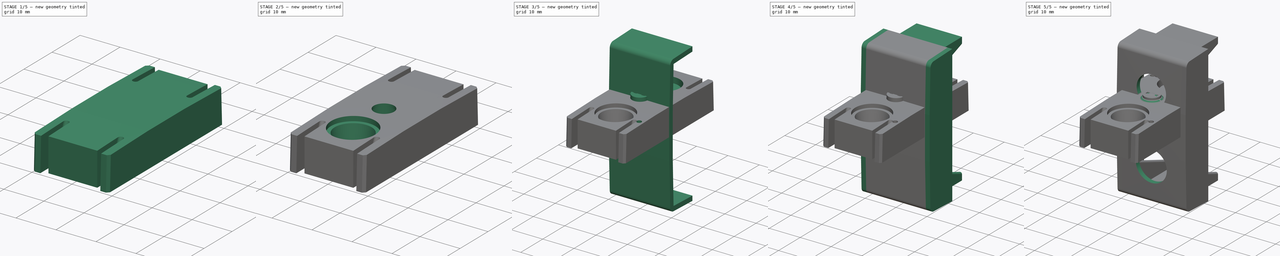
[diagram: build sequence overview — one tinted view per stage of 5, left to right]
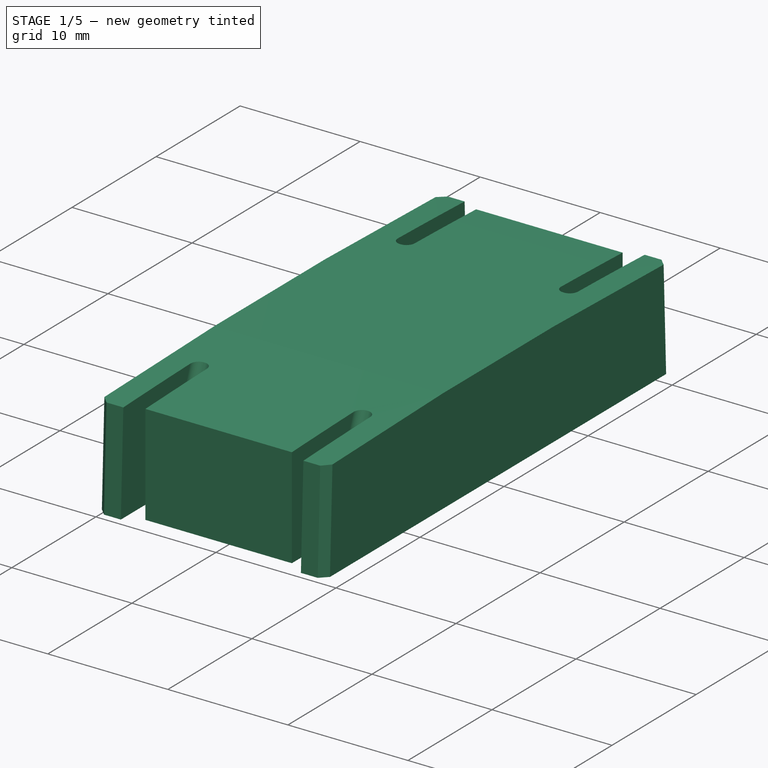
[diagram: stage 1 of 5 — iso view after this stage's code; geometry added in this stage tinted green]
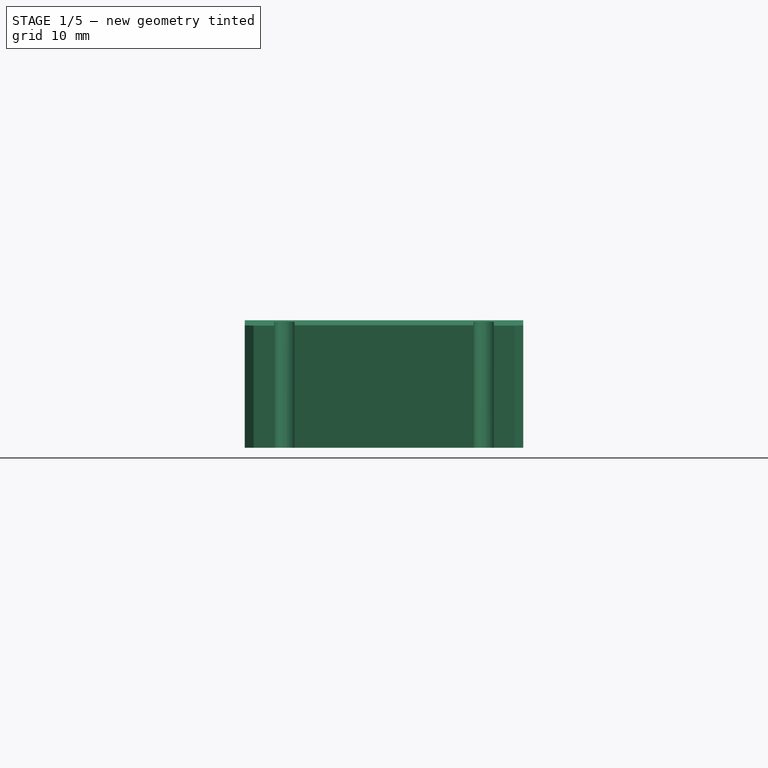
[diagram: stage 1 of 5 — front view after this stage's code; geometry added in this stage tinted green]
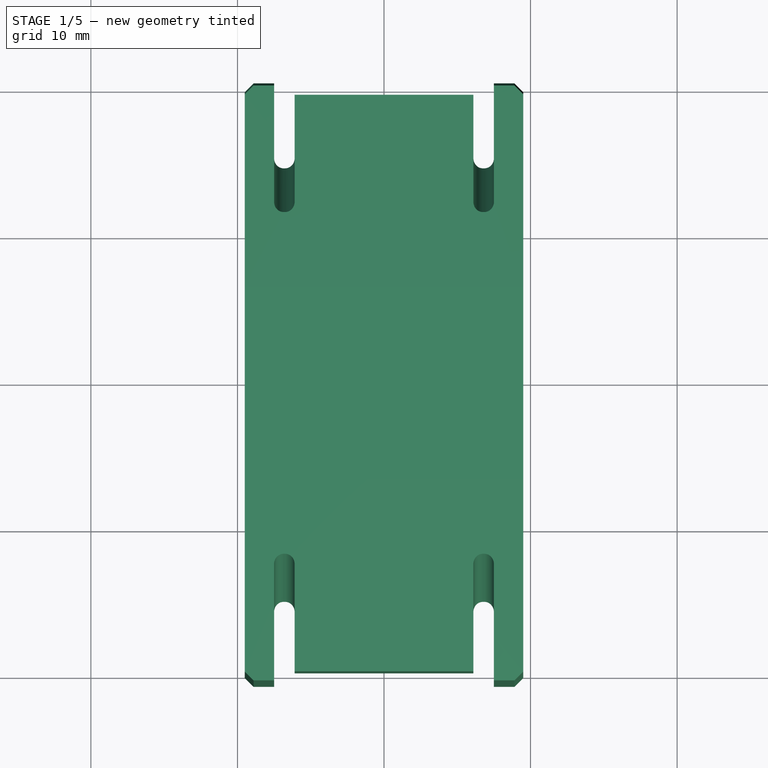
[diagram: stage 1 of 5 — top view after this stage's code; geometry added in this stage tinted green]
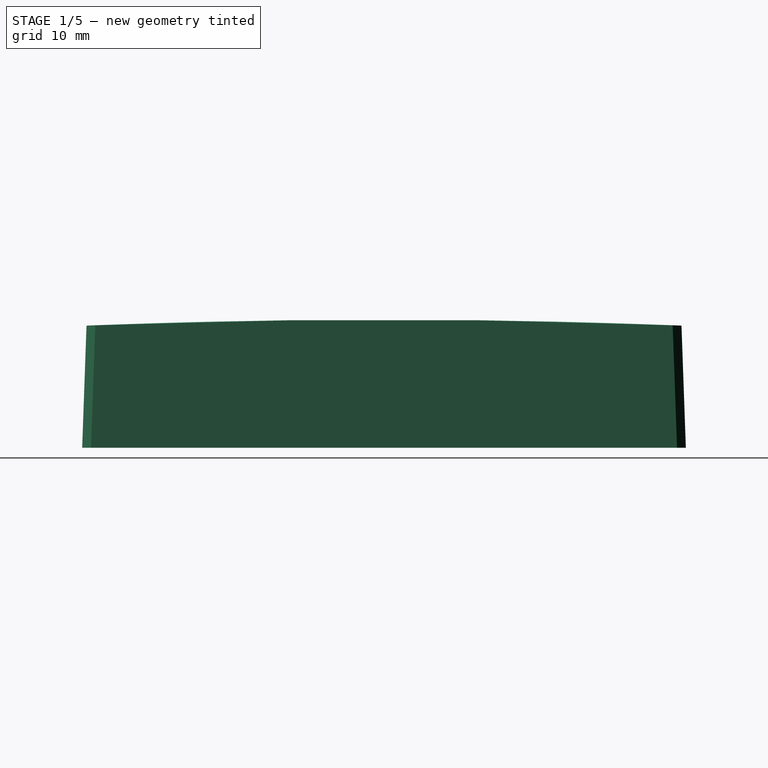
[diagram: stage 1 of 5 — right view after this stage's code; geometry added in this stage tinted green]
FCSTD DOCUMENT  (FreeCAD 0.21R33771 (Git))
Label: night_light
License: All rights reserved
LicenseURL: http://en.wikipedia.org/wiki/All_rights_reserved
objects: Sketcher::SketchObject×24, PartDesign::Pocket×12, PartDesign::Pad×9, PartDesign::Body×6, PartDesign::Fillet×3, PartDesign::Revolution×2, PartDesign::Chamfer×2, App::VRMLObject×1, Part::Feature×1, App::DocumentObjectGroup×1, Spreadsheet::Sheet×1, PartDesign::SubtractiveCone×1
note: 89 computed .brp shape members not serialized (recipe doc carries the construction recipe); baked Part::Feature solids carry a one-line shape summary decoded from their .brp

FEATURE [PartDesign::Body] Body003  label="PIR_spacer"
  Group = -> [Sketch013,Pad007]
  Origin = -> Origin003
  Tip = -> Pad007
FEATURE [App::VRMLObject] night_light
  Placement = pos=(0,0,1.1) rot=(0,1,0;3.14159rad)
FEATURE [Sketcher::SketchObject] Sketch014  label="PTH pockets"
  FullyConstrained = true
  MapMode = 5
  Support = -> [XY_Plane005]
  sketch-geometry (53):
    g0: Circle CenterX=7.25 CenterY=10.4875 CenterZ=0 NormalX=0 NormalY=0 NormalZ=1 AngleXU=0 Radius=1.05
    g1: Circle CenterX=7.25 CenterY=12.9875 CenterZ=0 NormalX=0 NormalY=0 NormalZ=1 AngleXU=0 Radius=1.05
    g2: LineSegment StartX=7.25 StartY=12.9875 StartZ=0 EndX=7.25 EndY=10.4875 EndZ=0
    g3: ArcOfCircle CenterX=5.7075 CenterY=5.4225 CenterZ=0 NormalX=0 NormalY=0 NormalZ=1 AngleXU=0 Radius=1.15 StartAngle=1.5708 EndAngle=4.71239
    g4: ArcOfCircle CenterX=7.5075 CenterY=5.4225 CenterZ=0 NormalX=0 NormalY=0 NormalZ=1 AngleXU=0 Radius=1.15 StartAngle=4.71239 EndAngle=7.85398
    g5: LineSegment StartX=5.7075 StartY=4.2725 StartZ=0 EndX=7.5075 EndY=4.2725 EndZ=0
    g6: LineSegment StartX=7.5075 StartY=6.5725 StartZ=0 EndX=5.7075 EndY=6.5725 EndZ=0
    g7: ArcOfCircle CenterX=7.8 CenterY=-6 CenterZ=0 NormalX=0 NormalY=0 NormalZ=1 AngleXU=0 Radius=0.85 StartAngle=1.5708 EndAngle=4.71239
    g8: ArcOfCircle CenterX=8.35 CenterY=-6 CenterZ=0 NormalX=0 NormalY=0 NormalZ=1 AngleXU=0 Radius=0.85 StartAngle=4.71239 EndAngle=7.85398
    g9: LineSegment StartX=7.8 StartY=-6.85 StartZ=0 EndX=8.35 EndY=-6.85 EndZ=0
    g10: LineSegment StartX=8.35 StartY=-5.15 StartZ=0 EndX=7.8 EndY=-5.15 EndZ=0
    g11: ArcOfCircle CenterX=5.0575 CenterY=2.2625 CenterZ=0 NormalX=0 NormalY=0 NormalZ=1 AngleXU=0 Radius=0.5 StartAngle=1.5708 EndAngle=3.14159
    g12: LineSegment StartX=5.0575 StartY=2.7625 StartZ=0 EndX=8.1575 EndY=2.7625 EndZ=0
    g13: ArcOfCircle CenterX=8.1575 CenterY=2.2625 CenterZ=0 NormalX=0 NormalY=0 NormalZ=1 AngleXU=0 Radius=0.5 StartAngle=2e-16 EndAngle=1.5708
    g14: LineSegment StartX=8.6575 StartY=2.2625 StartZ=0 EndX=8.6575 EndY=0.9625 EndZ=0
    g15: ArcOfCircle CenterX=8.1575 CenterY=0.9625 CenterZ=0 NormalX=0 NormalY=0 NormalZ=1 AngleXU=0 Radius=0.5 StartAngle=4.71239 EndAngle=6.28319
    g16: LineSegment StartX=8.1575 StartY=0.4625 StartZ=0 EndX=5.0575 EndY=0.4625 EndZ=0
    g17: ArcOfCircle CenterX=5.0575 CenterY=0.9625 CenterZ=0 NormalX=0 NormalY=0 NormalZ=1 AngleXU=0 Radius=0.5 StartAngle=3.14159 EndAngle=4.71239
    g18: LineSegment StartX=4.5575 StartY=0.9625 StartZ=0 EndX=4.5575 EndY=2.2625 EndZ=0
    g19: GeomPoint X=4.5575 Y=2.7625 Z=0
    g20: GeomPoint X=8.6575 Y=0.4625 Z=0
    g21: ArcOfCircle CenterX=7.45 CenterY=-3.65 CenterZ=0 NormalX=0 NormalY=0 NormalZ=1 AngleXU=0 Radius=0.5 StartAngle=1.5708 EndAngle=3.14159
    g22: LineSegment StartX=7.45 StartY=-3.15 StartZ=0 EndX=8.7 EndY=-3.15 EndZ=0
    g23: ArcOfCircle CenterX=8.7 CenterY=-3.65 CenterZ=0 NormalX=0 NormalY=0 NormalZ=1 AngleXU=0 Radius=0.5 StartAngle=2e-16 EndAngle=1.5708
    g24: LineSegment StartX=9.2 StartY=-3.65 StartZ=0 EndX=9.2 EndY=-4.35 EndZ=0
    g25: ArcOfCircle CenterX=8.7 CenterY=-4.35 CenterZ=0 NormalX=0 NormalY=0 NormalZ=1 AngleXU=0 Radius=0.5 StartAngle=4.71239 EndAngle=6.28319
    g26: LineSegment StartX=8.7 StartY=-4.85 StartZ=0 EndX=7.45 EndY=-4.85 EndZ=0
    g27: ArcOfCircle CenterX=7.45 CenterY=-4.35 CenterZ=0 NormalX=0 NormalY=0 NormalZ=1 AngleXU=0 Radius=0.5 StartAngle=3.14159 EndAngle=4.71239
    g28: LineSegment StartX=6.95 StartY=-4.35 StartZ=0 EndX=6.95 EndY=-3.65 EndZ=0
    g29: GeomPoint X=6.95 Y=-3.15 Z=0
    g30: GeomPoint X=9.2 Y=-4.85 Z=0
    g31: LineSegment StartX=8.1575 StartY=2.2625 StartZ=0 EndX=8.1575 EndY=1.6125 EndZ=0
    g32: LineSegment StartX=8.1575 StartY=1.6125 StartZ=0 EndX=8.1575 EndY=0.9625 EndZ=0
    g33: LineSegment StartX=8.7 StartY=-3.65 StartZ=0 EndX=8.7 EndY=-4 EndZ=0
    g34: LineSegment StartX=8.7 StartY=-4 StartZ=0 EndX=8.7 EndY=-4.35 EndZ=0
    g35: LineSegment StartX=7.5075 StartY=5.4225 StartZ=0 EndX=6.6075 EndY=5.4225 EndZ=0
    g36: LineSegment StartX=6.6075 StartY=5.4225 StartZ=0 EndX=5.7075 EndY=5.4225 EndZ=0
    g37: LineSegment StartX=8.1575 StartY=2.2625 StartZ=0 EndX=6.6075 EndY=2.2625 EndZ=0
    g38: LineSegment StartX=6.6075 StartY=2.2625 StartZ=0 EndX=5.0575 EndY=2.2625 EndZ=0
    g39: LineSegment StartX=6.6075 StartY=5.4225 StartZ=0 EndX=6.6075 EndY=2.2625 EndZ=0
    g40: LineSegment StartX=8.35 StartY=-6 StartZ=0 EndX=8.075 EndY=-6 EndZ=0
    g41: LineSegment StartX=8.075 StartY=-6 StartZ=0 EndX=7.8 EndY=-6 EndZ=0
    g42: LineSegment StartX=8.7 StartY=-4.35 StartZ=0 EndX=8.075 EndY=-4.35 EndZ=0
    g43: LineSegment StartX=8.075 StartY=-4.35 StartZ=0 EndX=7.45 EndY=-4.35 EndZ=0
    g44: LineSegment StartX=8.075 StartY=-6 StartZ=0 EndX=8.075 EndY=-4.35 EndZ=0
    g45: LineSegment StartX=5.7075 StartY=6.5725 StartZ=0 EndX=5.7075 EndY=4.2725 EndZ=0
    g46: LineSegment StartX=5.0575 StartY=2.7625 StartZ=0 EndX=5.0575 EndY=0.4625 EndZ=0
    g47: LineSegment StartX=4.5575 StartY=5.4225 StartZ=0 EndX=8.6575 EndY=5.4225 EndZ=0
    g48: LineSegment StartX=4.5575 StartY=0.9625 StartZ=0 EndX=8.6575 EndY=0.9625 EndZ=0
    g49: LineSegment StartX=6.95 StartY=-6 StartZ=0 EndX=9.2 EndY=-6 EndZ=0
    g50: LineSegment StartX=6.95 StartY=-3.65 StartZ=0 EndX=9.2 EndY=-3.65 EndZ=0
    g51: LineSegment StartX=7.45 StartY=-3.15 StartZ=0 EndX=7.45 EndY=-4.85 EndZ=0
    g52: LineSegment StartX=7.8 StartY=-5.15 StartZ=0 EndX=7.8 EndY=-6.85 EndZ=0
  constraints (131):
    c: DistanceY(g0) = 10.4875
    c: DistanceX(g0) = 7.25
    c: Coincident(g2,g1)
    c: Coincident(g2,g0)
    c: Vertical(g2)
    c: DistanceY(g2,g2) = 2.5
    c: Tangent(g3,g5) = -1.5708
    c: Tangent(g5,g4) = -1.5708
    c: Tangent(g4,g6) = -1.5708
    c: Tangent(g6,g3) = -1.5708
    c: Equal(g3,g4)
    c: Horizontal(g5)
    c: Tangent(g7,g9) = -1.5708
    c: Tangent(g9,g8) = -1.5708
    c: Tangent(g8,g10) = -1.5708
    c: Tangent(g10,g7) = -1.5708
    c: Equal(g7,g8)
    c: Horizontal(g9)
    c: Tangent(g11,g12) = 1.5708
    c: Tangent(g12,g13) = 1.5708
    c: Tangent(g13,g14) = 1.5708
    c: Tangent(g14,g15) = 1.5708
    c: Tangent(g15,g16) = 1.5708
    c: Tangent(g16,g17) = 1.5708
    c: Tangent(g17,g18) = 1.5708
    c: Tangent(g18,g11) = 1.5708
    c: Horizontal(g12)
    c: Horizontal(g16)
    c: Vertical(g14)
    c: Vertical(g18)
    c: Equal(g11,g13)
    c: Equal(g13,g15)
    c: Equal(g15,g17)
    c: PointOnObject(g19,g12)
    c: PointOnObject(g19,g18)
    c: PointOnObject(g20,g14)
    c: PointOnObject(g20,g16)
    c: Tangent(g21,g22) = 1.5708
    c: Tangent(g22,g23) = 1.5708
    c: Tangent(g23,g24) = 1.5708
    c: Tangent(g24,g25) = 1.5708
    c: Tangent(g25,g26) = 1.5708
    c: Tangent(g26,g27) = 1.5708
    c: Tangent(g27,g28) = 1.5708
    c: Tangent(g28,g21) = 1.5708
    c: Horizontal(g22)
    c: Horizontal(g26)
    c: Vertical(g24)
    c: Vertical(g28)
    c: Equal(g21,g23)
    c: Equal(g23,g25)
    c: Equal(g25,g27)
    c: PointOnObject(g29,g22)
    c: PointOnObject(g29,g28)
    c: PointOnObject(g30,g24)
    c: PointOnObject(g30,g26)
    c: DistanceY(g8) = -6
    c: DistanceY(g4) = 5.4225
    c: Coincident(g31,g13)
    c: Vertical(g31)
    c: Coincident(g32,g31)
    c: Coincident(g32,g15)
    c: Coincident(g33,g23)
    c: Vertical(g33)
    c: Coincident(g34,g33)
    c: Coincident(g34,g25)
    c: Equal(g34,g33)
    c: Equal(g32,g31)
    c: DistanceY(g31,g4) = 3.81
    c: DistanceY(g8,g33) = 2
    c: Coincident(g35,g4)
    c: Horizontal(g35)
    c: Coincident(g36,g35)
    c: Coincident(g36,g3)
    c: Coincident(g37,g13)
    c: Horizontal(g37)
    c: Coincident(g38,g37)
    c: Coincident(g38,g11)
    c: Equal(g37,g38)
    c: Equal(g35,g36)
    c: Coincident(g39,g35)
    c: Coincident(g39,g37)
    c: Vertical(g39)
    c: Coincident(g40,g8)
    c: Horizontal(g40)
    c: Coincident(g41,g40)
    c: Coincident(g41,g7)
    c: Coincident(g42,g25)
    c: Horizontal(g42)
    c: Coincident(g43,g42)
    c: Coincident(g43,g27)
    c: Equal(g42,g43)
    c: Equal(g40,g41)
    c: Coincident(g44,g40)
    c: Coincident(g44,g42)
    c: Vertical(g44)
    c: DistanceX(g37) = 6.6075
    c: DistanceX(g42) = 8.075
    c: Equal(g0,g1)
    c: Coincident(g45,g3)
    c: PointOnObject(g45,g3)
    c: Vertical(g45)
    c: Coincident(g46,g11)
    c: Coincident(g46,g16)
    c: Equal(g46,g45)
    c: PointOnObject(g47,g3)
    c: PointOnObject(g47,g4)
    c: Horizontal(g47)
    c: PointOnObject(g3,g47)
    c: Coincident(g48,g17)
    c: Coincident(g48,g14)
    c: Equal(g48,g47)
    c: PointOnObject(g49,g7)
    c: PointOnObject(g49,g8)
    c: Horizontal(g49)
    c: PointOnObject(g7,g49)
    c: Coincident(g50,g21)
    c: Coincident(g50,g23)
    c: Equal(g50,g49)
    c: Coincident(g51,g21)
    c: Coincident(g51,g26)
    c: Coincident(g52,g7)
    c: Coincident(g52,g7)
    c: Equal(g52,g51)
    c: DistanceY(g52,g52) = 1.7
    c: DistanceX(g49,g49) = 2.25
    c: Diameter(g0) = 2.1
    c: DistanceY(g46,g46) = 2.3
    c: DistanceX(g48,g48) = 4.1
    c: Radius(g27) = 0.5
    c: Radius(g17) = 0.5
FEATURE [Sketcher::SketchObject] Sketch015  label="screw holes"
  FullyConstrained = true
  MapMode = 5
  Support = -> [XY_Plane005]
  sketch-geometry (6):
    g0: LineSegment StartX=-8.125 StartY=12 StartZ=0 EndX=8.125 EndY=12 EndZ=0
    g1: LineSegment StartX=8.125 StartY=12 StartZ=0 EndX=8.125 EndY=-12 EndZ=0
    g2: LineSegment StartX=8.125 StartY=-12 StartZ=0 EndX=-8.125 EndY=-12 EndZ=0
    g3: LineSegment StartX=-8.125 StartY=-12 StartZ=0 EndX=-8.125 EndY=12 EndZ=0
    g4: Circle CenterX=-8.125 CenterY=12 CenterZ=0 NormalX=0 NormalY=0 NormalZ=1 AngleXU=0 Radius=0.75
    g5: Circle CenterX=8.125 CenterY=-12 CenterZ=0 NormalX=0 NormalY=0 NormalZ=1 AngleXU=0 Radius=0.75
  constraints (14):
    c: Coincident(g0,g1)
    c: Coincident(g1,g2)
    c: Coincident(g2,g3)
    c: Coincident(g3,g0)
    c: Horizontal(g2)
    c: Vertical(g3)
    c: Symmetric(g0,g1,g-1)
    c: Symmetric(g0,g0,g-2)
    c: Coincident(g4,g0)
    c: Coincident(g5,g1)
    c: Equal(g5,g4)
    c: DistanceX(g2,g2) = 16.25
    c: DistanceY(g3,g3) = 24
    c: Diameter(g4) = 1.5
FEATURE [Part::Feature] Part__Feature  label="TEPT5700"
  Placement = pos=(0,0,4.8) rot=(1,0,0;1.5708rad)
  shape: bbox 5.61 x 5.7 x 31.85 mm, 48 faces, 5 solids (baked)
FEATURE [App::DocumentObjectGroup] Group  label="PCB"
  Group = -> [Body003,Body004,night_light,Part__Feature]
FEATURE [Sketcher::SketchObject] Sketch016
  FullyConstrained = true
  MapMode = 5
  Placement = pos=(0,0,0) rot=(0.57735,0.57735,0.57735;2.0944rad)
  Support = -> [YZ_Plane005]
  expr: Constraints[12] = Spreadsheet.ptol
  expr: Constraints[13] = Spreadsheet.htol
  sketch-geometry (5):
    g0: ArcOfCircle CenterX=8.08e-14 CenterY=-499.612 CenterZ=0 NormalX=0 NormalY=0 NormalZ=1 AngleXU=0 Radius=508.348 StartAngle=1.53085 EndAngle=1.61074
    g1: LineSegment StartX=-20.3007 StartY=8.33036 StartZ=0 EndX=-20.5973 EndY=0 EndZ=0
    g2: LineSegment StartX=20.3007 StartY=8.33036 StartZ=0 EndX=20.5973 EndY=0 EndZ=0
    g3: LineSegment StartX=20.5973 StartY=0 StartZ=0 EndX=-20.5973 EndY=0 EndZ=0
    g4: GeomPoint X=20.4507 Y=8.58036 Z=0
  constraints (14):
    c: Coincident(g1,g0)
    c: PointOnObject(g1,g-1)
    c: Coincident(g2,g0)
    c: PointOnObject(g2,g-1)
    c: Coincident(g3,g2)
    c: Coincident(g3,g1)
    c: Angle(g3,g1) = 1.53521
    c: Equal(g2,g1)
    c: Symmetric(g0,g0,g-2)
    c: DistanceY(g0) = -499.612
    c: DistanceY(g4) = 8.58036
    c: DistanceX(g4) = 20.4507
    c: DistanceX(g0,g4) = 0.15
    c: DistanceY(g0,g4) = 0.25
FEATURE [PartDesign::Pad] Pad008  label="base shape"
  Direction = (1,-2e-16,3e-16)
  Length = 19
  Length2 = 10
  Midplane = true
  Placement = pos=(0,0,0) rot=(1,1,1;2.0944rad)
  Profile = -> Sketch016
  ReferenceAxis = -> Sketch016 [N_Axis]
  Type = 0
  expr: Length = 19.3 - Spreadsheet.ptol * 2
FEATURE [Sketcher::SketchObject] Sketch017
  FullyConstrained = true
  MapMode = 5
  Placement = pos=(0,0,0) rot=(0.57735,0.57735,0.57735;2.0944rad)
  Support = -> [YZ_Plane005]
  sketch-geometry (9):
    g0: LineSegment StartX=22.675 StartY=0 StartZ=0 EndX=19.675 EndY=0 EndZ=0
    g1: LineSegment StartX=19.675 StartY=0 StartZ=0 EndX=19.675 EndY=10 EndZ=0
    g2: LineSegment StartX=19.675 StartY=10 StartZ=0 EndX=22.675 EndY=10 EndZ=0
    g3: LineSegment StartX=22.675 StartY=10 StartZ=0 EndX=22.675 EndY=0 EndZ=0
    g4: GeomPoint X=19.925 Y=0 Z=0
    g5: LineSegment StartX=-22.675 StartY=10 StartZ=0 EndX=-19.675 EndY=10 EndZ=0
    g6: LineSegment StartX=-19.675 StartY=10 StartZ=0 EndX=-19.675 EndY=-2.31e-14 EndZ=0
    g7: LineSegment StartX=-19.675 StartY=-2.31e-14 StartZ=0 EndX=-22.675 EndY=-2.31e-14 EndZ=0
    g8: LineSegment StartX=-22.675 StartY=-2.31e-14 StartZ=0 EndX=-22.675 EndY=10 EndZ=0
  constraints (25):
    c: Coincident(g0,g1)
    c: Coincident(g1,g2)
    c: Coincident(g2,g3)
    c: Coincident(g3,g0)
    c: Horizontal(g0)
    c: Horizontal(g2)
    c: Vertical(g1)
    c: Vertical(g3)
    c: PointOnObject(g0,g-1)
    c: DistanceY(g3,g3) = 10
    c: DistanceX(g0,g0) = 3
    c: PointOnObject(g4,g-1)
    c: DistanceX(g4) = 19.925
    c: DistanceX(g0,g4) = 0.25
    c: Coincident(g5,g6)
    c: Coincident(g6,g7)
    c: Coincident(g7,g8)
    c: Coincident(g8,g5)
    c: Horizontal(g5)
    c: Horizontal(g7)
    c: Vertical(g6)
    c: Vertical(g8)
    c: Equal(g6,g3)
    c: Equal(g2,g5)
    c: Symmetric(g0,g6,g-1)
FEATURE [Sketcher::SketchObject] Sketch018
  AttachmentOffset = pos=(0,0,6.8) rot=(0,0,1;0rad)
  FullyConstrained = true
  MapMode = 5
  Placement = pos=(6.8,-1.5e-15,1.5e-15) rot=(0.57735,0.57735,0.57735;2.0944rad)
  Support = -> [YZ_Plane005]
  sketch-geometry (17):
    g0: LineSegment StartX=-11.82 StartY=8.9 StartZ=0 EndX=-19.925 EndY=8.9 EndZ=0
    g1: LineSegment StartX=-19.925 StartY=8.9 StartZ=0 EndX=-19.925 EndY=-9.9 EndZ=0
    g2: LineSegment StartX=-19.925 StartY=-9.9 StartZ=0 EndX=-18.665 EndY=-9.9 EndZ=0
    g3: LineSegment StartX=-18.665 StartY=-9.9 StartZ=0 EndX=-11.82 EndY=8.9 EndZ=0
    g4: LineSegment StartX=11.82 StartY=8.9 StartZ=0 EndX=19.925 EndY=8.9 EndZ=0
    g5: LineSegment StartX=19.925 StartY=8.9 StartZ=0 EndX=19.925 EndY=-9.9 EndZ=0
    g6: LineSegment StartX=19.925 StartY=-9.9 StartZ=0 EndX=18.665 EndY=-9.9 EndZ=0
    g7: LineSegment StartX=18.665 StartY=-9.9 StartZ=0 EndX=11.82 EndY=8.9 EndZ=0
    g8: LineSegment StartX=-19.925 StartY=8.9 StartZ=0 EndX=-11.5539 EndY=8.9 EndZ=0
    g9: LineSegment StartX=-11.5539 StartY=8.9 StartZ=0 EndX=-18.3989 EndY=-9.9 EndZ=0
    g10: LineSegment StartX=-18.3989 StartY=-9.9 StartZ=0 EndX=-19.925 EndY=-9.9 EndZ=0
    g11: LineSegment StartX=-19.925 StartY=-9.9 StartZ=0 EndX=-19.925 EndY=8.9 EndZ=0
    g12: LineSegment StartX=19.925 StartY=8.9 StartZ=0 EndX=11.5539 EndY=8.9 EndZ=0
    g13: LineSegment StartX=11.5539 StartY=8.9 StartZ=0 EndX=18.3989 EndY=-9.9 EndZ=0
    g14: LineSegment StartX=18.3989 StartY=-9.9 StartZ=0 EndX=19.925 EndY=-9.9 EndZ=0
    g15: LineSegment StartX=19.925 StartY=-9.9 StartZ=0 EndX=19.925 EndY=8.9 EndZ=0
    g16: LineSegment StartX=-18.3989 StartY=-9.9 StartZ=0 EndX=-18.6339 EndY=-9.81447 EndZ=0
  constraints (45):
    c: Horizontal(g0)
    c: Coincident(g0,g1)
    c: Vertical(g1)
    c: Coincident(g1,g2)
    c: Horizontal(g2)
    c: Coincident(g2,g3)
    c: Coincident(g3,g0)
    c: Horizontal(g4)
    c: Coincident(g4,g5)
    c: Vertical(g5)
    c: Coincident(g5,g6)
    c: Horizontal(g6)
    c: Coincident(g6,g7)
    c: Coincident(g7,g4)
    c: Equal(g2,g6)
    c: Symmetric(g0,g4,g-2)
    c: Symmetric(g2,g6,g-2)
    c: DistanceX(g0,g4) = 39.85
    c: DistanceX(g0,g4) = 23.64
    c: DistanceX(g2,g6) = 37.33
    c: DistanceY(g1,g1) = 18.8
    c: DistanceY(g0) = 8.9
    c: Coincident(g0,g8)
    c: Horizontal(g8)
    c: Coincident(g8,g9)
    c: Coincident(g9,g10)
    c: Coincident(g10,g1)
    c: Horizontal(g10)
    c: Coincident(g10,g11)
    c: Coincident(g11,g8)
    c: Coincident(g4,g12)
    c: Horizontal(g12)
    c: Coincident(g12,g13)
    c: Coincident(g13,g14)
    c: Coincident(g14,g5)
    c: Coincident(g14,g15)
    c: Coincident(g15,g12)
    c: PointOnObject(g6,g14)
    c: Parallel(g13,g7)
    c: Parallel(g3,g9)
    c: Equal(g10,g14)
    c: Coincident(g16,g9)
    c: PointOnObject(g16,g3)
    c: Perpendicular(g3,g16)
    c: Distance(g16) = 0.25
FEATURE [Sketcher::SketchObject] Sketch019
  AttachmentOffset = pos=(0,0,-6.8) rot=(0,0,1;0rad)
  FullyConstrained = true
  MapMode = 5
  Placement = pos=(-6.8,1.5e-15,-1.5e-15) rot=(0.57735,0.57735,0.57735;2.0944rad)
  Support = -> [YZ_Plane005]
  sketch-geometry (17):
    g0: LineSegment StartX=-11.82 StartY=8.9 StartZ=0 EndX=-19.925 EndY=8.9 EndZ=0
    g1: LineSegment StartX=-19.925 StartY=8.9 StartZ=0 EndX=-19.925 EndY=-9.9 EndZ=0
    g2: LineSegment StartX=-19.925 StartY=-9.9 StartZ=0 EndX=-18.665 EndY=-9.9 EndZ=0
    g3: LineSegment StartX=-18.665 StartY=-9.9 StartZ=0 EndX=-11.82 EndY=8.9 EndZ=0
    g4: LineSegment StartX=11.82 StartY=8.9 StartZ=0 EndX=19.925 EndY=8.9 EndZ=0
    g5: LineSegment StartX=19.925 StartY=8.9 StartZ=0 EndX=19.925 EndY=-9.9 EndZ=0
    g6: LineSegment StartX=19.925 StartY=-9.9 StartZ=0 EndX=18.665 EndY=-9.9 EndZ=0
    g7: LineSegment StartX=18.665 StartY=-9.9 StartZ=0 EndX=11.82 EndY=8.9 EndZ=0
    g8: LineSegment StartX=-19.925 StartY=8.9 StartZ=0 EndX=-11.5539 EndY=8.9 EndZ=0
    g9: LineSegment StartX=-11.5539 StartY=8.9 StartZ=0 EndX=-18.3989 EndY=-9.9 EndZ=0
    g10: LineSegment StartX=-18.3989 StartY=-9.9 StartZ=0 EndX=-19.925 EndY=-9.9 EndZ=0
    g11: LineSegment StartX=-19.925 StartY=-9.9 StartZ=0 EndX=-19.925 EndY=8.9 EndZ=0
    g12: LineSegment StartX=19.925 StartY=8.9 StartZ=0 EndX=11.5539 EndY=8.9 EndZ=0
    g13: LineSegment StartX=11.5539 StartY=8.9 StartZ=0 EndX=18.3989 EndY=-9.9 EndZ=0
    g14: LineSegment StartX=18.3989 StartY=-9.9 StartZ=0 EndX=19.925 EndY=-9.9 EndZ=0
    g15: LineSegment StartX=19.925 StartY=-9.9 StartZ=0 EndX=19.925 EndY=8.9 EndZ=0
    g16: LineSegment StartX=-18.3989 StartY=-9.9 StartZ=0 EndX=-18.6339 EndY=-9.81447 EndZ=0
  constraints (45):
    c: Horizontal(g0)
    c: Coincident(g0,g1)
    c: Vertical(g1)
    c: Coincident(g1,g2)
    c: Horizontal(g2)
    c: Coincident(g2,g3)
    c: Coincident(g3,g0)
    c: Horizontal(g4)
    c: Coincident(g4,g5)
    c: Vertical(g5)
    c: Coincident(g5,g6)
    c: Horizontal(g6)
    c: Coincident(g6,g7)
    c: Coincident(g7,g4)
    c: Equal(g2,g6)
    c: Symmetric(g0,g4,g-2)
    c: Symmetric(g2,g6,g-2)
    c: DistanceX(g0,g4) = 39.85
    c: DistanceX(g0,g4) = 23.64
    c: DistanceX(g2,g6) = 37.33
    c: DistanceY(g1,g1) = 18.8
    c: DistanceY(g0) = 8.9
    c: Coincident(g0,g8)
    c: Horizontal(g8)
    c: Coincident(g8,g9)
    c: Coincident(g9,g10)
    c: Coincident(g10,g1)
    c: Horizontal(g10)
    c: Coincident(g10,g11)
    c: Coincident(g11,g8)
    c: Coincident(g4,g12)
    c: Horizontal(g12)
    c: Coincident(g12,g13)
    c: Coincident(g13,g14)
    c: Coincident(g14,g5)
    c: Coincident(g14,g15)
    c: Coincident(g15,g12)
    c: PointOnObject(g6,g14)
    c: Parallel(g13,g7)
    c: Parallel(g3,g9)
    c: Equal(g10,g14)
    c: Coincident(g16,g9)
    c: PointOnObject(g16,g3)
    c: Perpendicular(g3,g16)
    c: Distance(g16) = 0.25
FEATURE [Spreadsheet::Sheet] Spreadsheet
  cells = A1='Perimeter tolerance; B1(ptol)=0.15; A2='Height tolerance; B2(htol)=0.25
FEATURE [PartDesign::Pocket] Pocket002
  BaseFeature = -> Pad008
  Direction = (-1,2e-16,-3e-16)
  Length = 15
  Length2 = 5
  Midplane = true
  Placement = pos=(0,0,0) rot=(1,1,1;2.0944rad)
  Profile = -> Sketch017
  ReferenceAxis = -> Sketch017 [N_Axis]
  Type = 0
  expr: Length = 14.7 + 2 * Spreadsheet.ptol
FEATURE [PartDesign::Pocket] Pocket003
  BaseFeature = -> Pocket002
  Direction = (-1,2e-16,-3e-16)
  Length = 1.4
  Length2 = 5
  Midplane = true
  Placement = pos=(0,0,0) rot=(1,1,1;2.0944rad)
  Profile = -> Sketch018
  ReferenceAxis = -> Sketch018 [N_Axis]
  Type = 0
  expr: Length = 1.1 + 2 * Spreadsheet.ptol
FEATURE [PartDesign::Pocket] Pocket004
  BaseFeature = -> Pocket003
  Direction = (-1,2e-16,-3e-16)
  Length = 1.4
  Length2 = 5
  Midplane = true
  Placement = pos=(0,0,0) rot=(1,1,1;2.0944rad)
  Profile = -> Sketch019
  ReferenceAxis = -> Sketch019 [N_Axis]
  Type = 0
  expr: Length = 1.1 + 2 * Spreadsheet.ptol
FEATURE [PartDesign::Chamfer] Chamfer001
  Angle = 45
  Base = -> Pocket004 [Edge59,Edge57,Edge29,Edge31]
  BaseFeature = -> Pocket004
  ChamferType = 0
  FlipDirection = false
  Placement = pos=(0,0,0) rot=(1,1,1;2.0944rad)
  Size = 0.6
  Size2 = 1
  SupportTransform = false
  UseAllEdges = false
FEATURE [PartDesign::Fillet] Fillet002  label="solid shape"
  Base = -> Chamfer001 [Edge72,Edge74,Edge58,Edge56,Edge54,Edge70,Edge69,Edge53]
  BaseFeature = -> Chamfer001
  Placement = pos=(0,0,0) rot=(1,1,1;2.0944rad)
  Radius = 0.65
  SupportTransform = false
  UseAllEdges = false
  expr: Radius = 0.5 + Spreadsheet.ptol
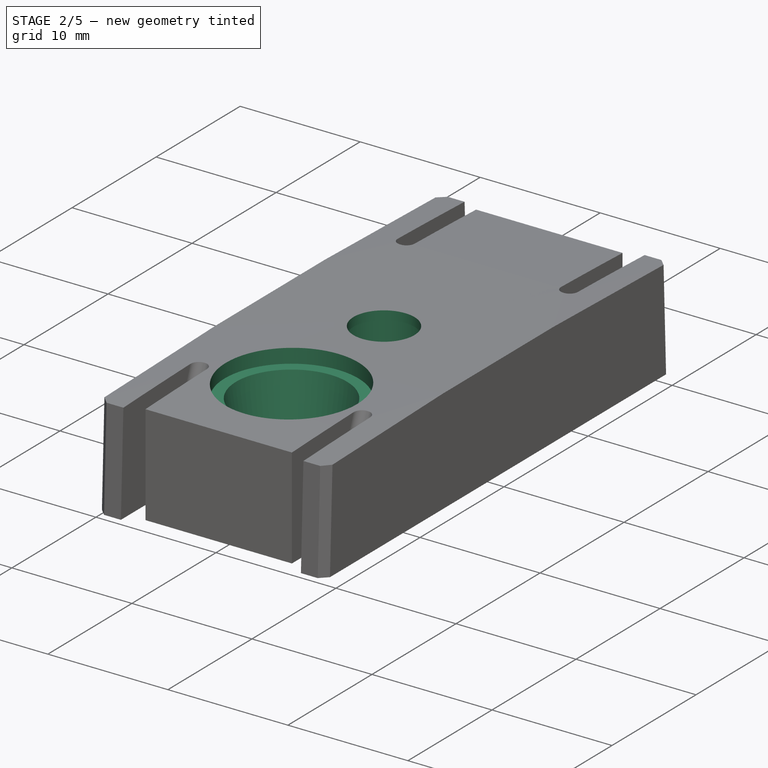
[diagram: stage 2 of 5 — iso view after this stage's code; geometry added in this stage tinted green]
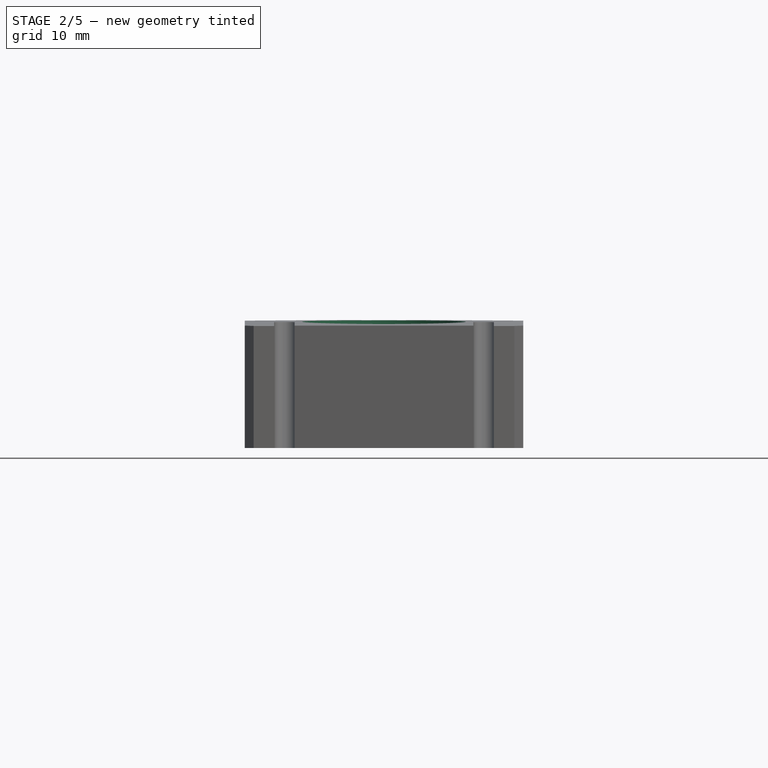
[diagram: stage 2 of 5 — front view after this stage's code; geometry added in this stage tinted green]
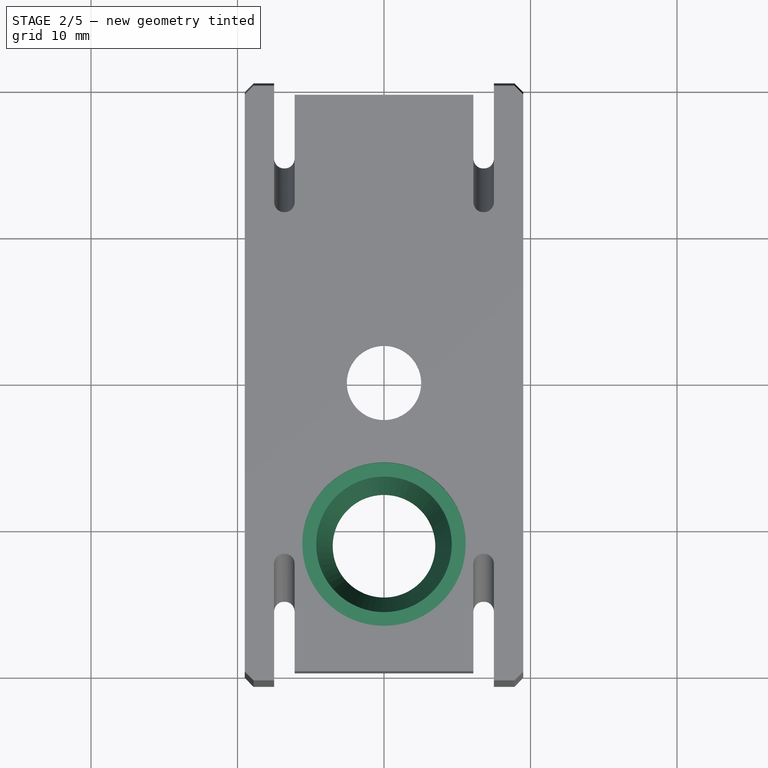
[diagram: stage 2 of 5 — top view after this stage's code; geometry added in this stage tinted green]
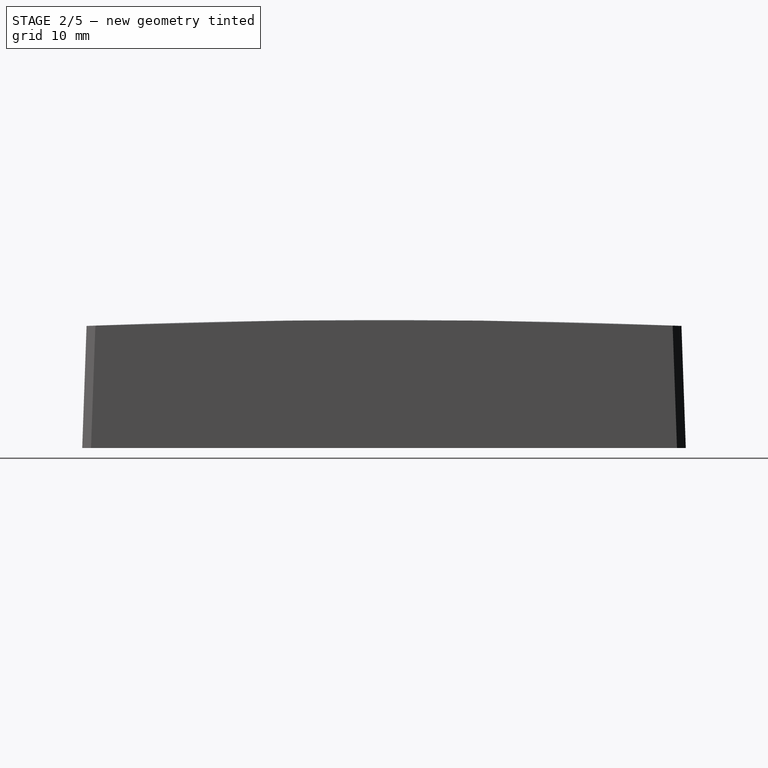
[diagram: stage 2 of 5 — right view after this stage's code; geometry added in this stage tinted green]
FEATURE [PartDesign::Pocket] Pocket005
  BaseFeature = -> Fillet002
  Direction = (0,0,-1)
  Length = 2
  Length2 = 5
  Placement = pos=(0,0,0) rot=(1,1,1;2.0944rad)
  Profile = -> Sketch014
  ReferenceAxis = -> Sketch014 [N_Axis]
  Reversed = true
  Type = 0
FEATURE [Sketcher::SketchObject] Sketch020  label="PT pocket"
  FullyConstrained = true
  MapMode = 5
  Support = -> [XY_Plane005]
  expr: Constraints[19] = Spreadsheet.ptol / 2
  sketch-geometry (7):
    g0: ArcOfCircle CenterX=0 CenterY=0 CenterZ=0 NormalX=0 NormalY=0 NormalZ=1 AngleXU=0 Radius=2.85 StartAngle=0.462955 EndAngle=5.82023
    g1: LineSegment StartX=2.55 StartY=-1.27279 StartZ=0 EndX=2.55 EndY=1.27279 EndZ=0
    g2: ArcOfCircle CenterX=0 CenterY=0 CenterZ=0 NormalX=0 NormalY=0 NormalZ=1 AngleXU=0 Radius=2.925 StartAngle=0.456874 EndAngle=5.82631
    g3: LineSegment StartX=2.625 StartY=-1.29035 StartZ=0 EndX=2.625 EndY=1.29035 EndZ=0
    g4: LineSegment StartX=2.55 StartY=-1.27279 StartZ=0 EndX=2.625 EndY=-1.27279 EndZ=0
    g5: LineSegment StartX=2.55 StartY=-1.27279 StartZ=0 EndX=0 EndY=0 EndZ=0
    g6: LineSegment StartX=2.55 StartY=-1.27279 StartZ=0 EndX=2.61711 EndY=-1.30629 EndZ=0
  constraints (20):
    c: Coincident(g0,g-1)
    c: Coincident(g1,g0)
    c: Coincident(g1,g0)
    c: Vertical(g1)
    c: Diameter(g0) = 5.7
    c: DistanceX(g0) = 2.55
    c: Coincident(g2,g0)
    c: Coincident(g3,g2)
    c: Coincident(g3,g2)
    c: Vertical(g3)
    c: Coincident(g4,g0)
    c: PointOnObject(g4,g3)
    c: Horizontal(g4)
    c: Coincident(g5,g0)
    c: Coincident(g5,g2)
    c: Coincident(g6,g0)
    c: PointOnObject(g6,g2)
    c: Parallel(g6,g5)
    c: Equal(g4,g6)
    c: DistanceX(g4,g4) = 0.075
FEATURE [PartDesign::Pocket] Pocket006
  BaseFeature = -> Pocket005
  Direction = (0,0,-1)
  Length = 8
  Length2 = 5
  Placement = pos=(0,0,0) rot=(1,1,1;2.0944rad)
  Profile = -> Sketch020
  ReferenceAxis = -> Sketch020 [N_Axis]
  Reversed = true
  Type = 0
  expr: Length = 7.75 + Spreadsheet.htol
FEATURE [Sketcher::SketchObject] Sketch021  label="led pocket"
  AttachmentOffset = pos=(0,0,7.5) rot=(0,0,1;0rad)
  FullyConstrained = true
  MapMode = 5
  Placement = pos=(0,0,7.5) rot=(0,0,1;0rad)
  Support = -> [XY_Plane005]
  expr: Constraints[2] = 11 + Spreadsheet.ptol
  sketch-geometry (1):
    g0: Circle CenterX=0 CenterY=-11 CenterZ=0 NormalX=0 NormalY=0 NormalZ=1 AngleXU=0 Radius=5.575
  constraints (3):
    c: PointOnObject(g0,g-2)
    c: DistanceY(g0) = -11
    c: Diameter(g0) = 11.15
FEATURE [Sketcher::SketchObject] Sketch022  label="PT hole"
  FullyConstrained = true
  MapMode = 5
  Support = -> [XY_Plane005]
  expr: Constraints[1] = 5 + Spreadsheet.ptol / 2
  sketch-geometry (1):
    g0: Circle CenterX=0 CenterY=0 CenterZ=0 NormalX=0 NormalY=0 NormalZ=1 AngleXU=0 Radius=2.5375
  constraints (2):
    c: Coincident(g0,g-1)
    c: Diameter(g0) = 5.075
FEATURE [PartDesign::Pocket] Pocket007
  BaseFeature = -> Pocket006
  Direction = (0,0,-1)
  Length = 5
  Length2 = 5
  Placement = pos=(0,0,0) rot=(1,1,1;2.0944rad)
  Profile = -> Sketch022
  ReferenceAxis = -> Sketch022 [N_Axis]
  Reversed = true
  Type = 1
FEATURE [PartDesign::Pocket] Pocket008
  BaseFeature = -> Pocket007
  Direction = (0,0,-1)
  Length = 5
  Length2 = 5
  Placement = pos=(0,0,0) rot=(1,1,1;2.0944rad)
  Profile = -> Sketch021
  ReferenceAxis = -> Sketch021 [N_Axis]
  Reversed = true
  Type = 1
FEATURE [Sketcher::SketchObject] Sketch023
  FullyConstrained = true
  MapMode = 5
  Support = -> [XY_Plane005]
  sketch-geometry (1):
    g0: Circle CenterX=0 CenterY=-11 CenterZ=0 NormalX=0 NormalY=0 NormalZ=1 AngleXU=0 Radius=5
  constraints (3):
    c: PointOnObject(g0,g-2)
    c: DistanceY(g0) = -11
    c: Diameter(g0) = 10
FEATURE [PartDesign::SubtractiveCone] Cone  label="LED cone"
  Angle = 360
  AttacherType = Attacher::AttachEngine3D
  BaseFeature = -> Pocket008
  Height = 10
  MapMode = 11
  Placement = pos=(0,-11,0) rot=(0,0,1;1.5708rad)
  Radius1 = 3.5
  Radius2 = 5
  Support = -> [Sketch023]
FEATURE [Sketcher::SketchObject] Sketch024  label="PIR pocket"
  FullyConstrained = true
  MapMode = 5
  Support = -> [XY_Plane005]
  expr: Constraints[2] = 12 + Spreadsheet.ptol
  sketch-geometry (1):
    g0: Circle CenterX=0 CenterY=11 CenterZ=0 NormalX=0 NormalY=0 NormalZ=1 AngleXU=0 Radius=6.075
  constraints (3):
    c: PointOnObject(g0,g-2)
    c: DistanceY(g0) = 11
    c: Diameter(g0) = 12.15
FEATURE [PartDesign::Pocket] Pocket009
  BaseFeature = -> Cone
  Direction = (0,0,-1)
  Length = 6.1
  Length2 = 5
  Placement = pos=(0,-11,0) rot=(0,0,1;1.5708rad)
  Profile = -> Sketch024
  ReferenceAxis = -> Sketch024 [N_Axis]
  Reversed = true
  Type = 0
  expr: Length = 5.85 + Spreadsheet.htol
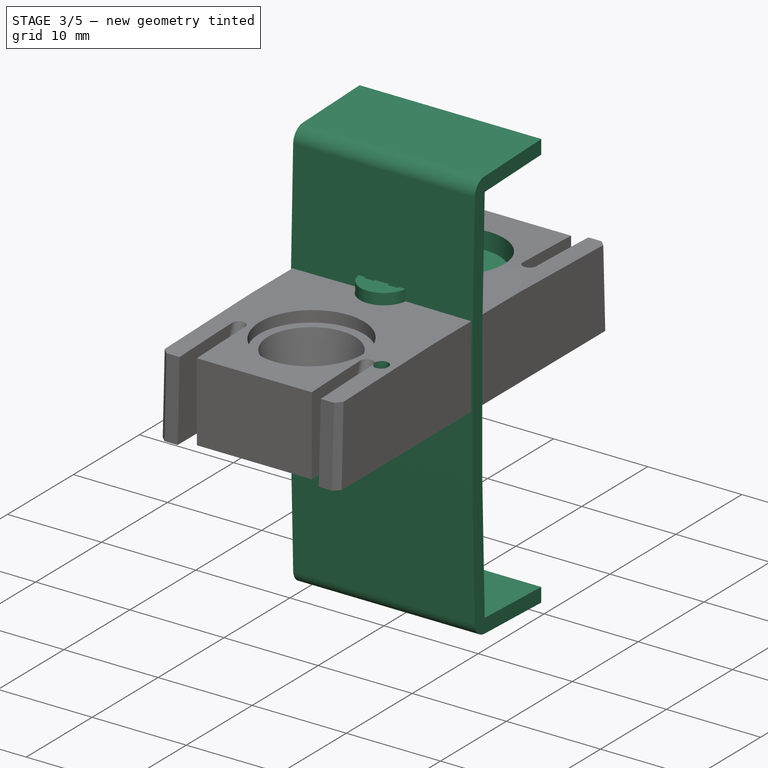
[diagram: stage 3 of 5 — iso view after this stage's code; geometry added in this stage tinted green]
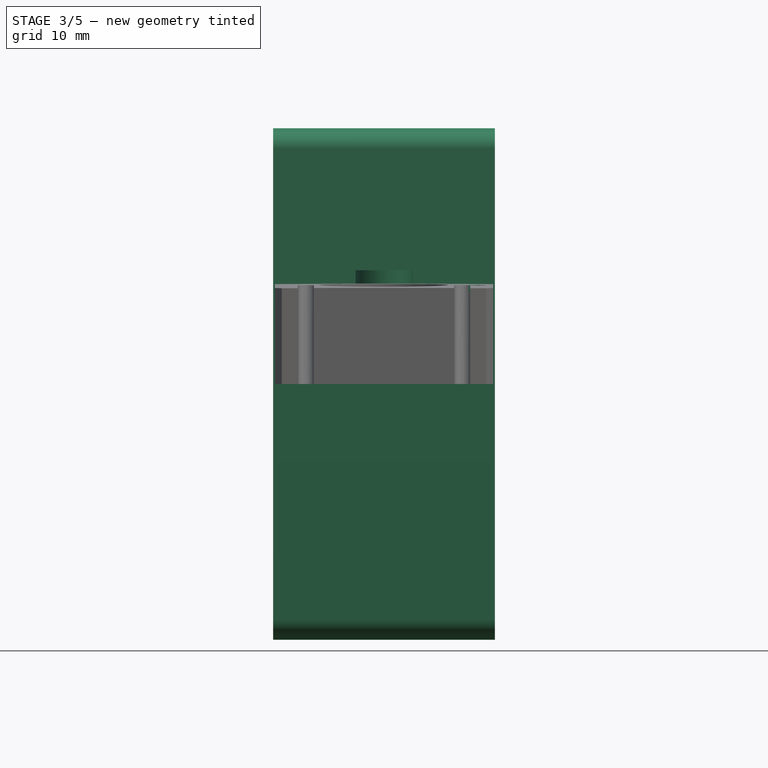
[diagram: stage 3 of 5 — front view after this stage's code; geometry added in this stage tinted green]
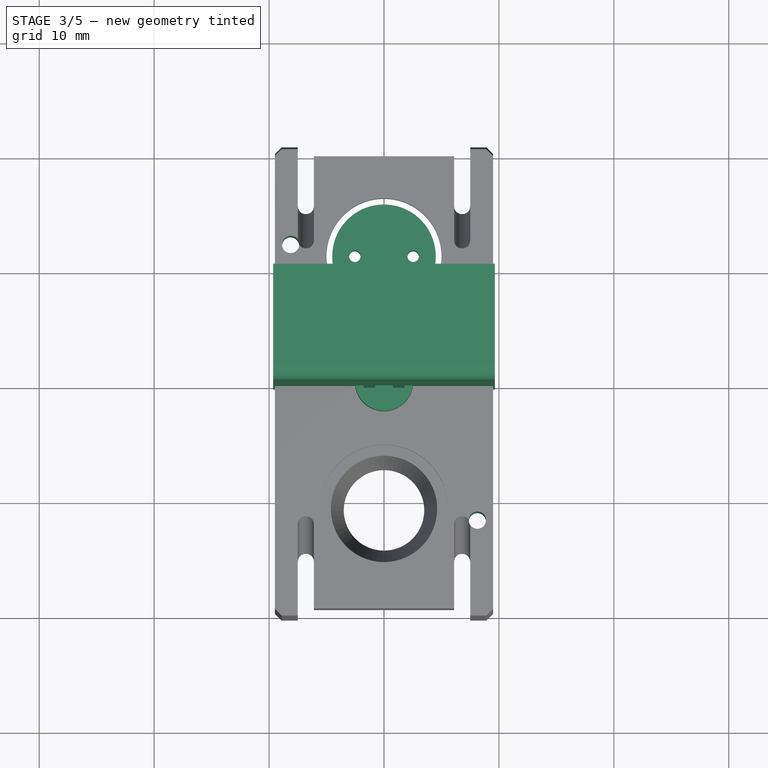
[diagram: stage 3 of 5 — top view after this stage's code; geometry added in this stage tinted green]
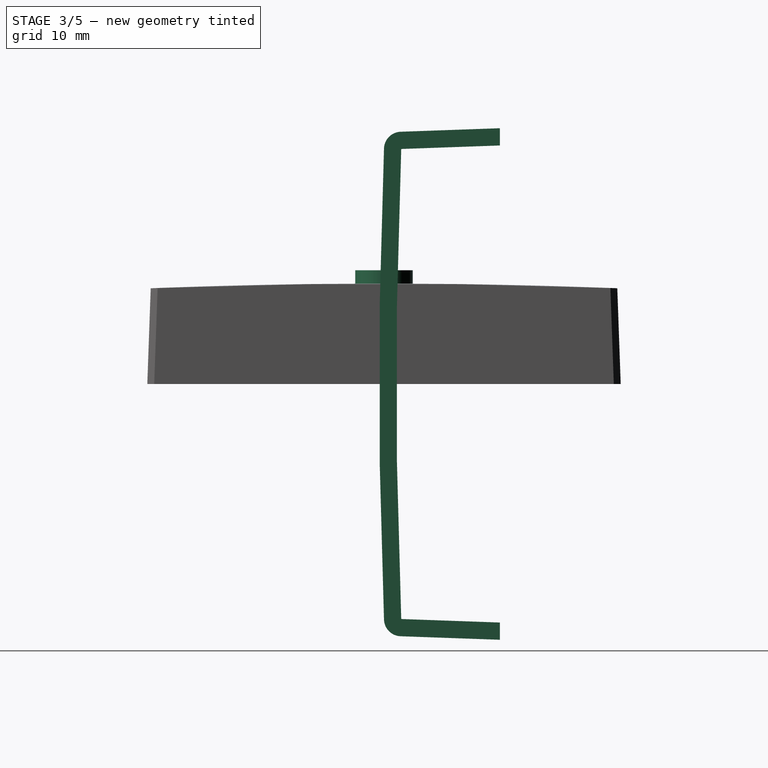
[diagram: stage 3 of 5 — right view after this stage's code; geometry added in this stage tinted green]
FEATURE [Sketcher::SketchObject] Sketch
  FullyConstrained = true
  MapMode = 5
  Placement = pos=(0,0,0) rot=(0.57735,0.57735,0.57735;2.0944rad)
  Support = -> [YZ_Plane001]
  sketch-geometry (13):
    g0: ArcOfCircle CenterX=499.612 CenterY=0 CenterZ=0 NormalX=0 NormalY=0 NormalZ=1 AngleXU=0 Radius=500.033 StartAngle=3.10056 EndAngle=3.18263
    g1: GeomPoint X=-0.4209 Y=0 Z=0
    g2: ArcOfCircle CenterX=1.49874 CenterY=20.4507 CenterZ=0 NormalX=0 NormalY=0 NormalZ=1 AngleXU=0 Radius=1.5 StartAngle=1.60638 EndAngle=3.10056
    g3: LineSegment StartX=1.44537 StartY=21.9497 StartZ=0 EndX=10.0791 EndY=22.2571 EndZ=0
    g4: LineSegment StartX=10.0791 StartY=22.2571 StartZ=0 EndX=10.0791 EndY=-22.2571 EndZ=0
    g5: ArcOfCircle CenterX=499.612 CenterY=0 CenterZ=0 NormalX=0 NormalY=0 NormalZ=1 AngleXU=0 Radius=498.533 StartAngle=3.10056 EndAngle=3.18263
    g6: GeomPoint X=10.0791 Y=0 Z=0
    g7: ArcOfCircle CenterX=1.49874 CenterY=-20.4507 CenterZ=0 NormalX=0 NormalY=0 NormalZ=1 AngleXU=0 Radius=1.5 StartAngle=3.18263 EndAngle=4.6768
    g8: LineSegment StartX=1.44537 StartY=-21.9497 StartZ=0 EndX=10.0791 EndY=-22.2571 EndZ=0
    g9: LineSegment StartX=1.49874 StartY=20.4507 StartZ=0 EndX=10.0791 EndY=20.7561 EndZ=0
    g10: LineSegment StartX=1.49874 StartY=-20.4507 StartZ=0 EndX=10.0791 EndY=-20.7561 EndZ=0
    g11: LineSegment StartX=10.0791 StartY=20.7561 StartZ=0 EndX=10.0791 EndY=22.2571 EndZ=0
    g12: LineSegment StartX=10.0791 StartY=-22.2571 StartZ=0 EndX=10.0791 EndY=-20.7561 EndZ=0
  constraints (36):
    c: PointOnObject(g0,g-1)
    c: PointOnObject(g0,g-2)
    c: PointOnObject(g0,g-2)
    c: DistanceY(g0,g0) = 41.0244
    c: PointOnObject(g1,g0)
    c: PointOnObject(g1,g-1)
    c: DistanceX(g1,g-1) = 0.4209
    c: Tangent(g2,g0) = -1.5708
    c: Radius(g2) = 1.5
    c: Angle(g2) = 1.49418
    c: Tangent(g3,g2) = 1.5708
    c: Coincident(g4,g3)
    c: Coincident(g5,g0)
    c: Coincident(g5,g2)
    c: PointOnObject(g6,g4)
    c: PointOnObject(g6,g-1)
    c: DistanceX(g1,g6) = 10.5
    c: Coincident(g7,g5)
    c: Coincident(g8,g4)
    c: Tangent(g7,g0) = -1.5708
    c: Tangent(g8,g7) = -1.5708
    c: Symmetric(g4,g3,g-1)
    c: Coincident(g9,g2)
    c: PointOnObject(g9,g4)
    c: Coincident(g10,g5)
    c: PointOnObject(g10,g4)
    c: Parallel(g9,g3)
    c: Parallel(g10,g8)
    c: Coincident(g11,g9)
    c: Coincident(g11,g3)
    c: Coincident(g12,g8)
    c: Coincident(g12,g10)
    c: Angle(g9,g4) = 1.53521
    c: DistanceX(g0) = 499.612
    c: DistanceY(g2) = 20.4507
    c: DistanceX(g2,g6) = 8.58036
FEATURE [PartDesign::Pad] Pad
  Direction = (1,-2e-16,3e-16)
  Length = 19.3
  Length2 = 10
  Midplane = true
  Placement = pos=(0,0,0) rot=(0.57735,0.57735,0.57735;2.0944rad)
  Profile = -> Sketch
  ReferenceAxis = -> Sketch [N_Axis]
  Type = 0
FEATURE [PartDesign::Body] Body001  label="copriforo"
  Group = -> [Sketch,Sketch001,Sketch002,Pad,Sketch003,Sketch004,Pad001,Pad002,Pad003,Pad004,Sketch010,Pad005,Fillet001,Chamfer,Sketch011,Pocket001]
  Origin = -> Origin001
  Placement = pos=(0,0,12) rot=(-1,0,0;1.5708rad)
  Tip = -> Pocket001
FEATURE [Sketcher::SketchObject] Sketch012
  AttachmentOffset = pos=(0,0,1.9) rot=(0,0,1;0rad)
  FullyConstrained = true
  MapMode = 5
  Placement = pos=(0,0,1.9) rot=(0,0,1;0rad)
  Support = -> [XY_Plane004]
  sketch-geometry (9):
    g0: LineSegment StartX=-1.77 StartY=0.5 StartZ=0 EndX=-0.77 EndY=0.5 EndZ=0
    g1: LineSegment StartX=-0.77 StartY=0.5 StartZ=0 EndX=-0.77 EndY=-0.5 EndZ=0
    g2: LineSegment StartX=-0.77 StartY=-0.5 StartZ=0 EndX=-1.77 EndY=-0.5 EndZ=0
    g3: LineSegment StartX=-1.77 StartY=-0.5 StartZ=0 EndX=-1.77 EndY=0.5 EndZ=0
    g4: LineSegment StartX=0.77 StartY=0.5 StartZ=0 EndX=1.77 EndY=0.5 EndZ=0
    g5: LineSegment StartX=1.77 StartY=0.5 StartZ=0 EndX=1.77 EndY=-0.5 EndZ=0
    g6: LineSegment StartX=1.77 StartY=-0.5 StartZ=0 EndX=0.77 EndY=-0.5 EndZ=0
    g7: LineSegment StartX=0.77 StartY=-0.5 StartZ=0 EndX=0.77 EndY=0.5 EndZ=0
    g8: Circle CenterX=0 CenterY=0 CenterZ=0 NormalX=0 NormalY=0 NormalZ=1 AngleXU=0 Radius=2.5
  constraints (24):
    c: Coincident(g0,g1)
    c: Coincident(g1,g2)
    c: Coincident(g2,g3)
    c: Coincident(g3,g0)
    c: Horizontal(g0)
    c: Horizontal(g2)
    c: Vertical(g3)
    c: Coincident(g4,g5)
    c: Coincident(g5,g6)
    c: Coincident(g6,g7)
    c: Coincident(g7,g4)
    c: Horizontal(g4)
    c: Horizontal(g6)
    c: Vertical(g5)
    c: Vertical(g7)
    c: Equal(g6,g7)
    c: Equal(g2,g3)
    c: Equal(g1,g7)
    c: Symmetric(g1,g0,g-1)
    c: Symmetric(g6,g1,g-2)
    c: DistanceX(g0,g4) = 2.54
    c: DistanceY(g5,g5) = 1
    c: Coincident(g8,g-1)
    c: Diameter(g8) = 5
FEATURE [PartDesign::Pad] Pad006
  Direction = (0,0,1)
  Length = 8
  Length2 = 10
  Profile = -> Sketch012
  ReferenceAxis = -> Sketch012 [N_Axis]
  Type = 0
FEATURE [PartDesign::Body] Body004  label="PT_spacer"
  Group = -> [Sketch012,Pad006]
  Origin = -> Origin004
  Tip = -> Pad006
FEATURE [Sketcher::SketchObject] Sketch013
  AttachmentOffset = pos=(0,0,1.9) rot=(0,0,1;0rad)
  FullyConstrained = true
  MapMode = 5
  Placement = pos=(0,0,1.9) rot=(0,0,1;0rad)
  Support = -> [XY_Plane003]
  sketch-geometry (4):
    g0: Circle CenterX=0 CenterY=11 CenterZ=0 NormalX=0 NormalY=0 NormalZ=1 AngleXU=0 Radius=4.5
    g1: Circle CenterX=0 CenterY=8.46 CenterZ=0 NormalX=0 NormalY=0 NormalZ=1 AngleXU=0 Radius=0.5
    g2: Circle CenterX=2.54 CenterY=11 CenterZ=0 NormalX=0 NormalY=0 NormalZ=1 AngleXU=0 Radius=0.5
    g3: Circle CenterX=-2.54 CenterY=11 CenterZ=0 NormalX=0 NormalY=0 NormalZ=1 AngleXU=0 Radius=0.5
  constraints (12):
    c: PointOnObject(g0,g-2)
    c: DistanceY(g0) = 11
    c: Diameter(g0) = 9
    c: PointOnObject(g1,g-2)
    c: DistanceY(g1,g0) = 2.54
    c: DistanceX(g0,g2) = 2.54
    c: DistanceX(g3,g0) = 2.54
    c: Equal(g2,g1)
    c: Equal(g1,g3)
    c: DistanceY(g2,g0) = 0
    c: DistanceY(g3,g0) = 0
    c: Diameter(g2) = 1
FEATURE [PartDesign::Pad] Pad007
  Direction = (0,0,1)
  Length = 5
  Length2 = 10
  Profile = -> Sketch013
  ReferenceAxis = -> Sketch013 [N_Axis]
  Type = 0
FEATURE [Sketcher::SketchObject] Sketch025
  FullyConstrained = true
  MapMode = 5
  Support = -> [XY_Plane005]
  sketch-geometry (1):
    g0: Circle CenterX=0 CenterY=11 CenterZ=0 NormalX=0 NormalY=0 NormalZ=1 AngleXU=0 Radius=5
  constraints (3):
    c: PointOnObject(g0,g-2)
    c: DistanceY(g0) = 11
    c: Diameter(g0) = 10
FEATURE [PartDesign::Pocket] Pocket010
  BaseFeature = -> Pocket009
  Direction = (0,0,-1)
  Length = 5
  Length2 = 5
  Placement = pos=(0,-11,0) rot=(0,0,1;1.5708rad)
  Profile = -> Sketch025
  ReferenceAxis = -> Sketch025 [N_Axis]
  Reversed = true
  Type = 1
FEATURE [PartDesign::Pocket] Pocket011
  BaseFeature = -> Pocket010
  Direction = (0,0,-1)
  Length = 5
  Length2 = 5
  Placement = pos=(0,-11,0) rot=(0,0,1;1.5708rad)
  Profile = -> Sketch015
  ReferenceAxis = -> Sketch015 [N_Axis]
  Reversed = true
  Type = 1
FEATURE [PartDesign::Body] Body005  label="Core"
  Group = -> [Sketch014,Sketch015,Sketch016,Pad008,Sketch017,Sketch018,Sketch019,Pocket002,Pocket003,Pocket004,Chamfer001,Fillet002,Pocket005,Sketch020,Pocket006,Sketch021,Sketch022,Pocket007,Pocket008,Sketch023,Cone,Sketch024,Pocket009,Sketch025,Pocket010,Pocket011]
  Origin = -> Origin005
  Placement = pos=(0,0,1.9) rot=(0,0,1;0rad)
  Tip = -> Pocket011
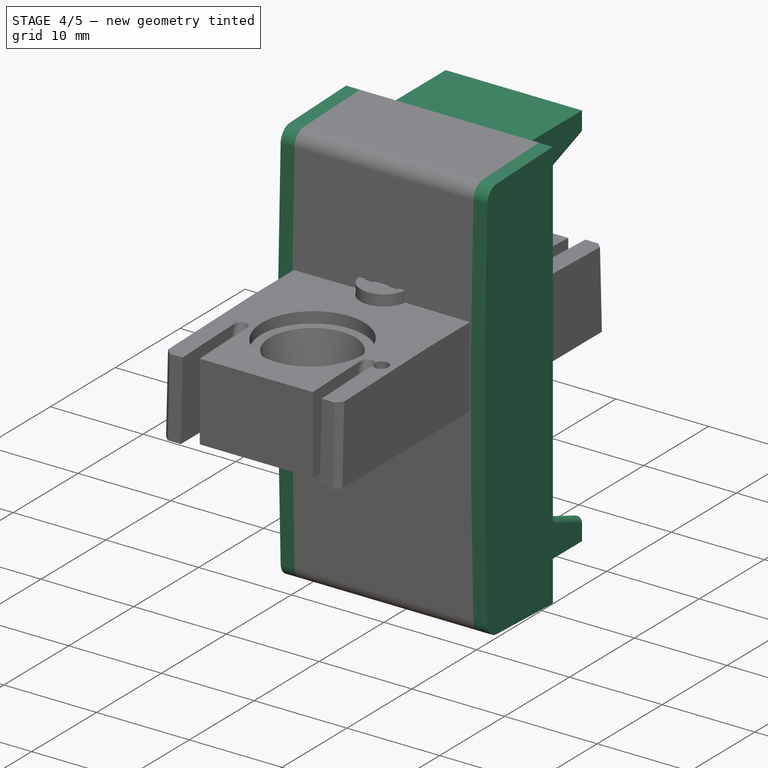
[diagram: stage 4 of 5 — iso view after this stage's code; geometry added in this stage tinted green]
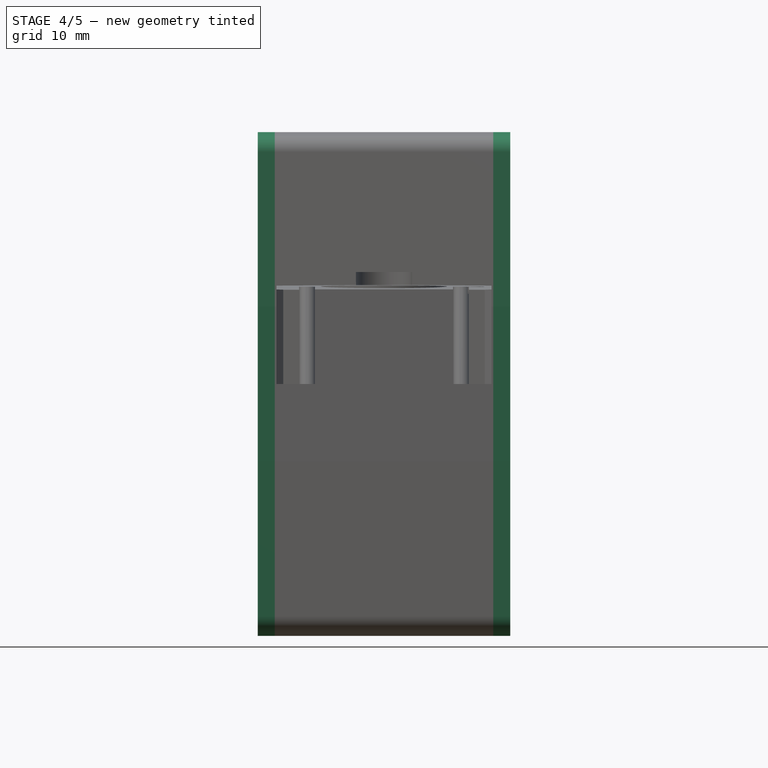
[diagram: stage 4 of 5 — front view after this stage's code; geometry added in this stage tinted green]
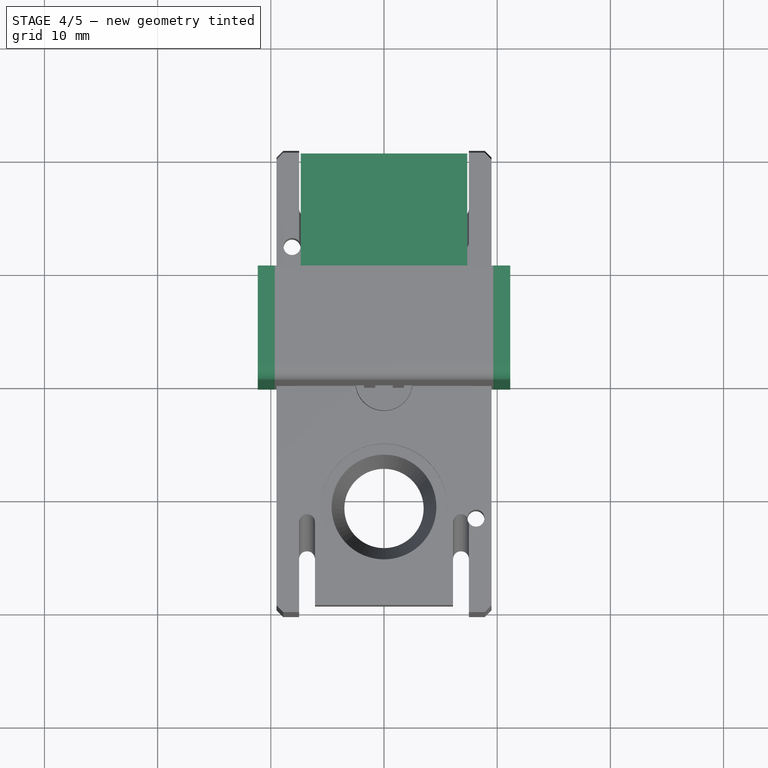
[diagram: stage 4 of 5 — top view after this stage's code; geometry added in this stage tinted green]
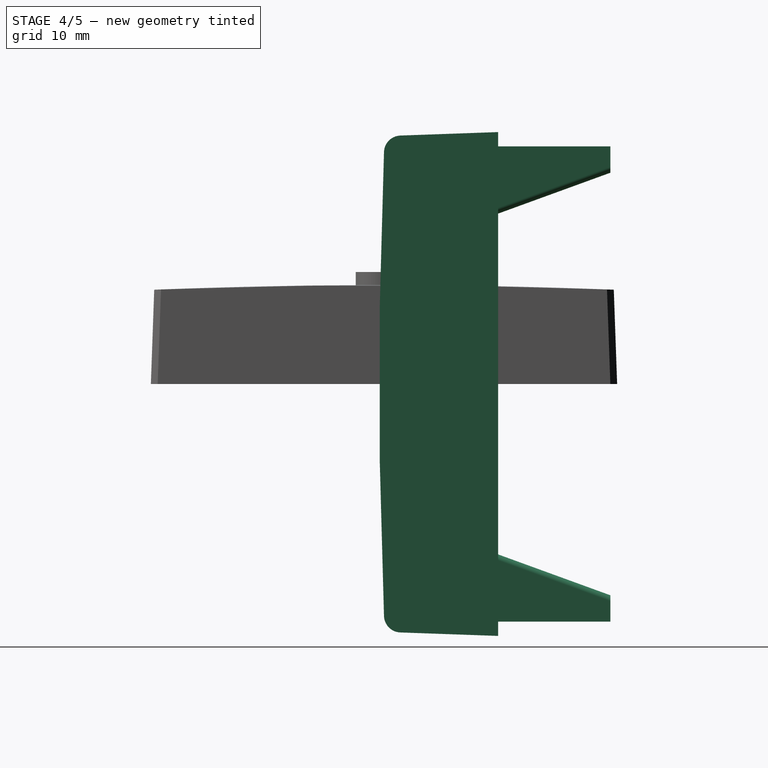
[diagram: stage 4 of 5 — right view after this stage's code; geometry added in this stage tinted green]
FEATURE [PartDesign::Body] Body  label="PIR_lens"
  Group = -> [Sketch008,Revolution001,Sketch009,Pocket]
  Origin = -> Origin
  Placement = pos=(0,11,6.5) rot=(0,0,-1;0.785398rad)
  Tip = -> Pocket
FEATURE [PartDesign::Pad] Pad001
  BaseFeature = -> Pad
  Direction = (1,-2e-16,3e-16)
  Length = 1.5
  Length2 = 10
  Placement = pos=(0,0,0) rot=(0.57735,0.57735,0.57735;2.0944rad)
  Profile = -> Sketch001
  ReferenceAxis = -> Sketch001 [N_Axis]
  Type = 0
FEATURE [PartDesign::Pad] Pad002
  BaseFeature = -> Pad001
  Direction = (1,-2e-16,3e-16)
  Length = 1.5
  Length2 = 10
  Placement = pos=(0,0,0) rot=(0.57735,0.57735,0.57735;2.0944rad)
  Profile = -> Sketch002
  ReferenceAxis = -> Sketch002 [N_Axis]
  Reversed = true
  Type = 0
FEATURE [PartDesign::Pad] Pad003
  BaseFeature = -> Pad002
  Direction = (0,-1,-2e-16)
  Length = 19
  Length2 = 10
  Placement = pos=(0,0,0) rot=(0.57735,0.57735,0.57735;2.0944rad)
  Profile = -> Sketch003
  ReferenceAxis = -> Sketch003 [N_Axis]
  Reversed = true
  Type = 0
FEATURE [PartDesign::Pad] Pad004
  BaseFeature = -> Pad003
  Direction = (1,-2e-16,3e-16)
  Length = 1.1
  Length2 = 10
  Placement = pos=(0,0,0) rot=(0.57735,0.57735,0.57735;2.0944rad)
  Profile = -> Sketch004
  ReferenceAxis = -> Sketch004 [N_Axis]
  Reversed = true
  Type = 0
FEATURE [Sketcher::SketchObject] Sketch010
  AttachmentOffset = pos=(0,0,-7.35) rot=(0,0,1;0rad)
  FullyConstrained = true
  MapMode = 5
  Placement = pos=(-7.35,1.6e-15,-1.6e-15) rot=(0.57735,0.57735,0.57735;2.0944rad)
  Support = -> [YZ_Plane001]
  sketch-geometry (8):
    g0: LineSegment StartX=1.2 StartY=11.82 StartZ=0 EndX=1.2 EndY=19.925 EndZ=0
    g1: LineSegment StartX=1.2 StartY=19.925 StartZ=0 EndX=20 EndY=19.925 EndZ=0
    g2: LineSegment StartX=20 StartY=19.925 StartZ=0 EndX=20 EndY=18.665 EndZ=0
    g3: LineSegment StartX=20 StartY=18.665 StartZ=0 EndX=1.2 EndY=11.82 EndZ=0
    g4: LineSegment StartX=1.2 StartY=-11.82 StartZ=0 EndX=1.2 EndY=-19.925 EndZ=0
    g5: LineSegment StartX=1.2 StartY=-19.925 StartZ=0 EndX=20 EndY=-19.925 EndZ=0
    g6: LineSegment StartX=20 StartY=-19.925 StartZ=0 EndX=20 EndY=-18.665 EndZ=0
    g7: LineSegment StartX=20 StartY=-18.665 StartZ=0 EndX=1.2 EndY=-11.82 EndZ=0
  constraints (22):
    c: Coincident(g0,g1)
    c: Horizontal(g1)
    c: Coincident(g1,g2)
    c: Vertical(g2)
    c: Coincident(g2,g3)
    c: Coincident(g3,g0)
    c: Coincident(g4,g5)
    c: Horizontal(g5)
    c: Coincident(g5,g6)
    c: Vertical(g6)
    c: Coincident(g6,g7)
    c: Coincident(g7,g4)
    c: Symmetric(g4,g0,g-1)
    c: Symmetric(g2,g6,g-1)
    c: Equal(g6,g2)
    c: DistanceX(g-1,g1) = 20
    c: DistanceX(g1,g1) = 18.8
    c: DistanceY(g6,g2) = 37.33
    c: Equal(g1,g5)
    c: Vertical(g0)
    c: DistanceY(g5,g1) = 39.85
    c: DistanceY(g4,g0) = 23.64
FEATURE [PartDesign::Pad] Pad005
  BaseFeature = -> Pad004
  Direction = (1,-2e-16,3e-16)
  Length = 1.1
  Length2 = 10
  Placement = pos=(0,0,0) rot=(0.57735,0.57735,0.57735;2.0944rad)
  Profile = -> Sketch010
  ReferenceAxis = -> Sketch010 [N_Axis]
  Type = 0
FEATURE [PartDesign::Fillet] Fillet001
  Base = -> Pad005 [Edge90,Edge91,Edge97,Edge61,Edge79,Edge77,Edge71,Edge69]
  BaseFeature = -> Pad005
  Placement = pos=(0,0,0) rot=(0.57735,0.57735,0.57735;2.0944rad)
  Radius = 0.5
  SupportTransform = false
  UseAllEdges = false
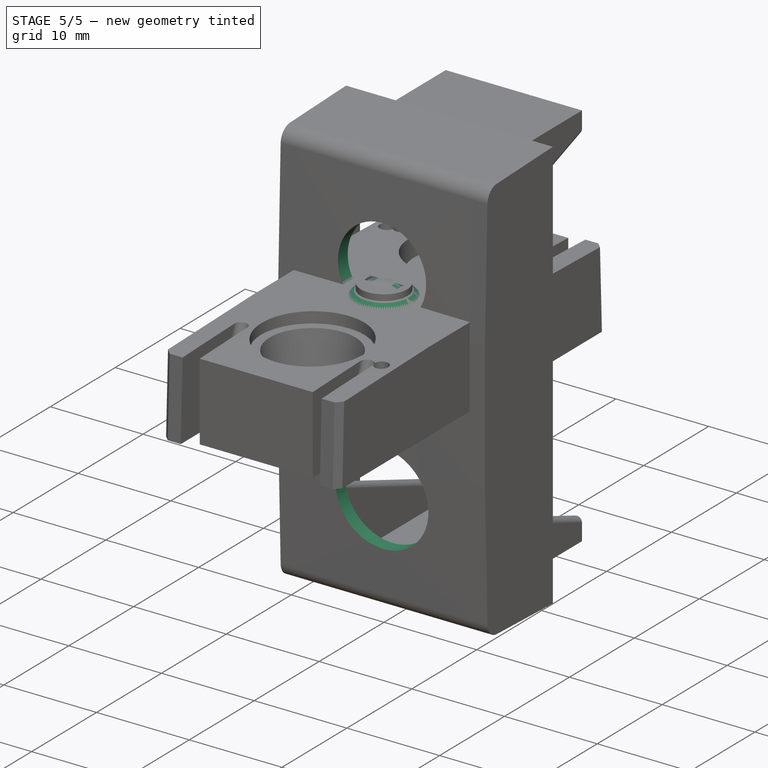
[diagram: stage 5 of 5 — iso view after this stage's code; geometry added in this stage tinted green]
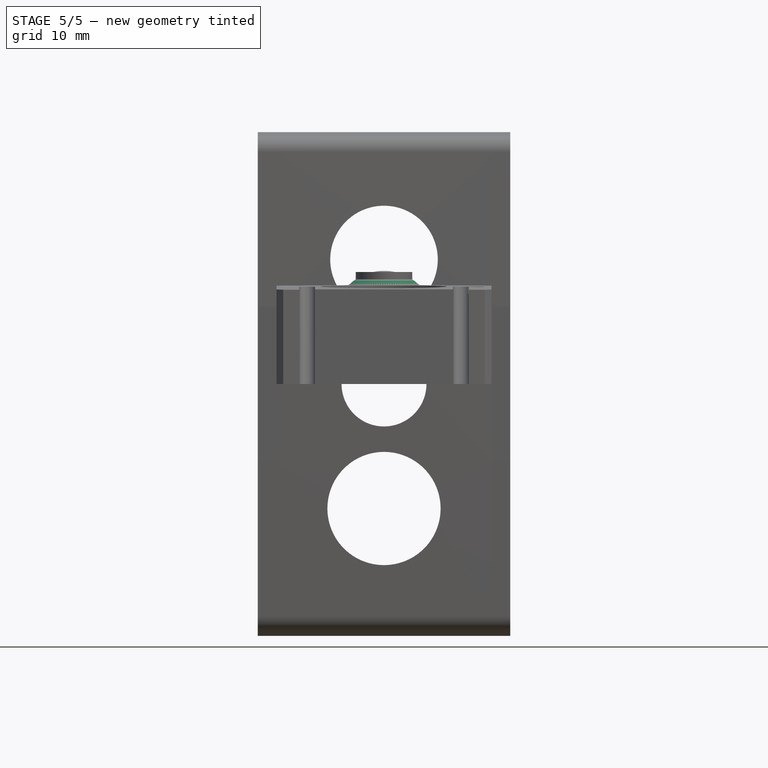
[diagram: stage 5 of 5 — front view after this stage's code; geometry added in this stage tinted green]
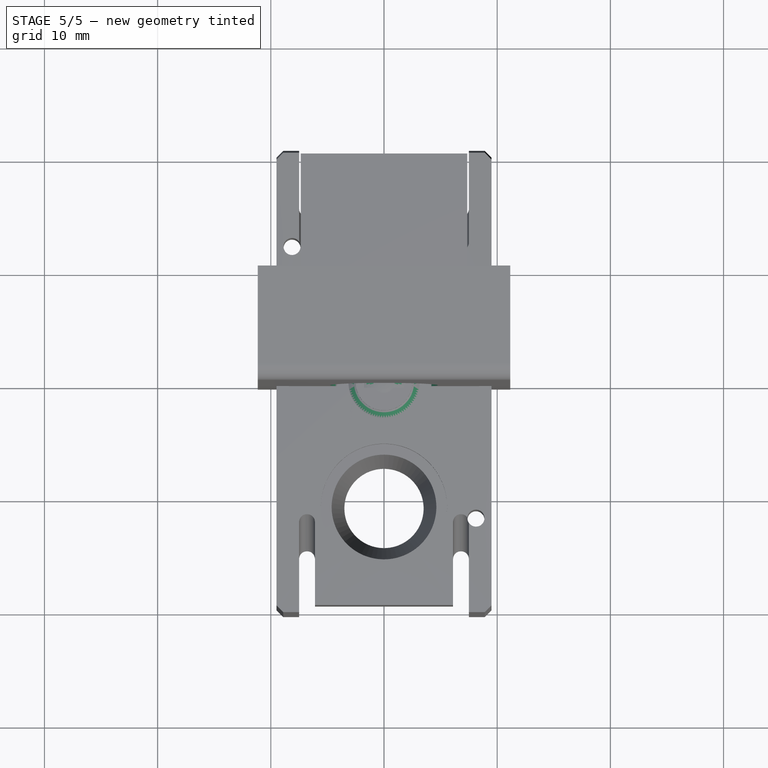
[diagram: stage 5 of 5 — top view after this stage's code; geometry added in this stage tinted green]
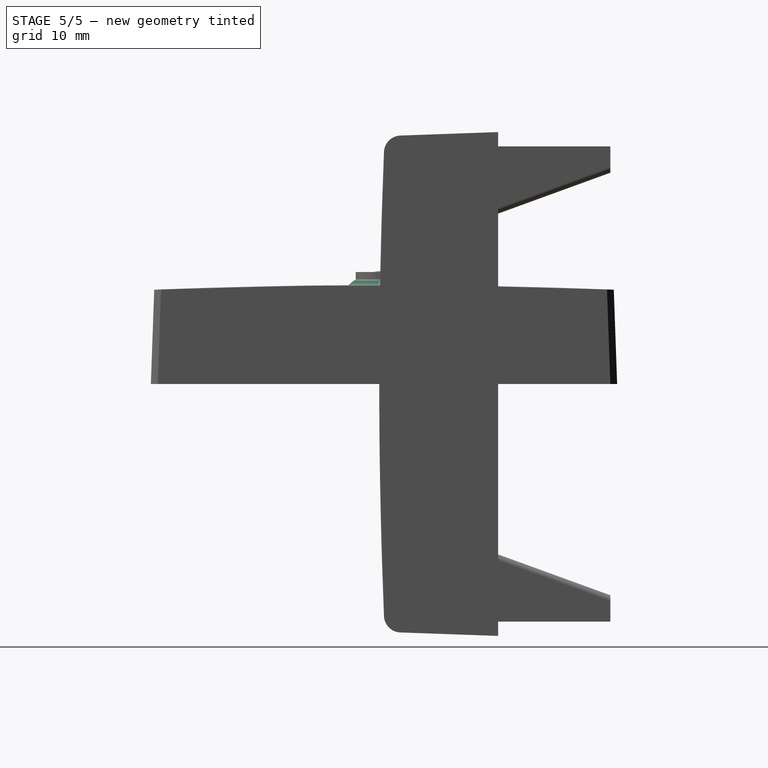
[diagram: stage 5 of 5 — right view after this stage's code; geometry added in this stage tinted green]
FEATURE [Sketcher::SketchObject] Sketch001
  AttachmentOffset = pos=(0,0,9.65) rot=(0,0,1;0rad)
  FullyConstrained = true
  MapMode = 5
  Placement = pos=(9.65,-2.1e-15,2.1e-15) rot=(0.57735,0.57735,0.57735;2.0944rad)
  Support = -> [YZ_Plane001]
  sketch-geometry (13):
    g0: ArcOfCircle CenterX=499.612 CenterY=0 CenterZ=0 NormalX=0 NormalY=0 NormalZ=1 AngleXU=0 Radius=500.033 StartAngle=3.10056 EndAngle=3.18263
    g1: GeomPoint X=-0.4209 Y=0 Z=0
    g2: ArcOfCircle CenterX=1.49874 CenterY=20.4507 CenterZ=0 NormalX=0 NormalY=0 NormalZ=1 AngleXU=0 Radius=1.5 StartAngle=1.60638 EndAngle=3.10056
    g3: LineSegment StartX=1.44537 StartY=21.9497 StartZ=0 EndX=10.0791 EndY=22.2571 EndZ=0
    g4: LineSegment StartX=10.0791 StartY=22.2571 StartZ=0 EndX=10.0791 EndY=-22.2571 EndZ=0
    g5: ArcOfCircle CenterX=499.612 CenterY=0 CenterZ=0 NormalX=0 NormalY=0 NormalZ=1 AngleXU=0 Radius=498.533 StartAngle=3.10056 EndAngle=3.18263
    g6: GeomPoint X=10.0791 Y=0 Z=0
    g7: ArcOfCircle CenterX=1.49874 CenterY=-20.4507 CenterZ=0 NormalX=0 NormalY=0 NormalZ=1 AngleXU=0 Radius=1.5 StartAngle=3.18263 EndAngle=4.6768
    g8: LineSegment StartX=1.44537 StartY=-21.9497 StartZ=0 EndX=10.0791 EndY=-22.2571 EndZ=0
    g9: LineSegment StartX=1.49874 StartY=20.4507 StartZ=0 EndX=10.0791 EndY=20.7561 EndZ=0
    g10: LineSegment StartX=1.49874 StartY=-20.4507 StartZ=0 EndX=10.0791 EndY=-20.7561 EndZ=0
    g11: LineSegment StartX=10.0791 StartY=20.7561 StartZ=0 EndX=10.0791 EndY=22.2571 EndZ=0
    g12: LineSegment StartX=10.0791 StartY=-22.2571 StartZ=0 EndX=10.0791 EndY=-20.7561 EndZ=0
  constraints (32):
    c: PointOnObject(g0,g-1)
    c: PointOnObject(g0,g-2)
    c: PointOnObject(g0,g-2)
    c: DistanceY(g0,g0) = 41.0244
    c: PointOnObject(g1,g0)
    c: PointOnObject(g1,g-1)
    c: DistanceX(g1,g-1) = 0.4209
    c: Tangent(g2,g0) = -1.5708
    c: Radius(g2) = 1.5
    c: Angle(g2) = 1.49418
    c: Tangent(g3,g2) = 1.5708
    c: Coincident(g4,g3)
    c: Coincident(g5,g0)
    c: Coincident(g5,g2)
    c: PointOnObject(g6,g4)
    c: PointOnObject(g6,g-1)
    c: DistanceX(g1,g6) = 10.5
    c: Coincident(g7,g5)
    c: Coincident(g8,g4)
    c: Tangent(g7,g0) = -1.5708
    c: Tangent(g8,g7) = -1.5708
    c: Symmetric(g4,g3,g-1)
    c: Coincident(g9,g2)
    c: PointOnObject(g9,g4)
    c: Coincident(g10,g5)
    c: PointOnObject(g10,g4)
    c: Parallel(g9,g3)
    c: Parallel(g10,g8)
    c: Coincident(g11,g9)
    c: Coincident(g11,g3)
    c: Coincident(g12,g8)
    c: Coincident(g12,g10)
FEATURE [Sketcher::SketchObject] Sketch002
  AttachmentOffset = pos=(0,0,-9.65) rot=(0,0,1;0rad)
  FullyConstrained = true
  MapMode = 5
  Placement = pos=(-9.65,2.1e-15,-2.1e-15) rot=(0.57735,0.57735,0.57735;2.0944rad)
  Support = -> [YZ_Plane001]
  sketch-geometry (13):
    g0: ArcOfCircle CenterX=499.612 CenterY=0 CenterZ=0 NormalX=0 NormalY=0 NormalZ=1 AngleXU=0 Radius=500.033 StartAngle=3.10056 EndAngle=3.18263
    g1: GeomPoint X=-0.4209 Y=0 Z=0
    g2: ArcOfCircle CenterX=1.49874 CenterY=20.4507 CenterZ=0 NormalX=0 NormalY=0 NormalZ=1 AngleXU=0 Radius=1.5 StartAngle=1.60638 EndAngle=3.10056
    g3: LineSegment StartX=1.44537 StartY=21.9497 StartZ=0 EndX=10.0791 EndY=22.2571 EndZ=0
    g4: LineSegment StartX=10.0791 StartY=22.2571 StartZ=0 EndX=10.0791 EndY=-22.2571 EndZ=0
    g5: ArcOfCircle CenterX=499.612 CenterY=0 CenterZ=0 NormalX=0 NormalY=0 NormalZ=1 AngleXU=0 Radius=498.533 StartAngle=3.10056 EndAngle=3.18263
    g6: GeomPoint X=10.0791 Y=0 Z=0
    g7: ArcOfCircle CenterX=1.49874 CenterY=-20.4507 CenterZ=0 NormalX=0 NormalY=0 NormalZ=1 AngleXU=0 Radius=1.5 StartAngle=3.18263 EndAngle=4.6768
    g8: LineSegment StartX=1.44537 StartY=-21.9497 StartZ=0 EndX=10.0791 EndY=-22.2571 EndZ=0
    g9: LineSegment StartX=1.49874 StartY=20.4507 StartZ=0 EndX=10.0791 EndY=20.7561 EndZ=0
    g10: LineSegment StartX=1.49874 StartY=-20.4507 StartZ=0 EndX=10.0791 EndY=-20.7561 EndZ=0
    g11: LineSegment StartX=10.0791 StartY=20.7561 StartZ=0 EndX=10.0791 EndY=22.2571 EndZ=0
    g12: LineSegment StartX=10.0791 StartY=-22.2571 StartZ=0 EndX=10.0791 EndY=-20.7561 EndZ=0
  constraints (32):
    c: PointOnObject(g0,g-1)
    c: PointOnObject(g0,g-2)
    c: PointOnObject(g0,g-2)
    c: DistanceY(g0,g0) = 41.0244
    c: PointOnObject(g1,g0)
    c: PointOnObject(g1,g-1)
    c: DistanceX(g1,g-1) = 0.4209
    c: Tangent(g2,g0) = -1.5708
    c: Radius(g2) = 1.5
    c: Angle(g2) = 1.49418
    c: Tangent(g3,g2) = 1.5708
    c: Coincident(g4,g3)
    c: Coincident(g5,g0)
    c: Coincident(g5,g2)
    c: PointOnObject(g6,g4)
    c: PointOnObject(g6,g-1)
    c: DistanceX(g1,g6) = 10.5
    c: Coincident(g7,g5)
    c: Coincident(g8,g4)
    c: Tangent(g7,g0) = -1.5708
    c: Tangent(g8,g7) = -1.5708
    c: Symmetric(g4,g3,g-1)
    c: Coincident(g9,g2)
    c: PointOnObject(g9,g4)
    c: Coincident(g10,g5)
    c: PointOnObject(g10,g4)
    c: Parallel(g9,g3)
    c: Parallel(g10,g8)
    c: Coincident(g11,g9)
    c: Coincident(g11,g3)
    c: Coincident(g12,g8)
    c: Coincident(g12,g10)
FEATURE [Sketcher::SketchObject] Sketch003
  AttachmentOffset = pos=(0,0,-1) rot=(0,0,1;0rad)
  FullyConstrained = true
  MapMode = 5
  Placement = pos=(0,1,2e-16) rot=(1,0,0;1.5708rad)
  Support = -> [XZ_Plane001]
  sketch-geometry (8):
    g0: LineSegment StartX=-7.35 StartY=19.925 StartZ=0 EndX=7.35 EndY=19.925 EndZ=0
    g1: LineSegment StartX=7.35 StartY=19.925 StartZ=0 EndX=7.35 EndY=20.995 EndZ=0
    g2: LineSegment StartX=7.35 StartY=20.995 StartZ=0 EndX=-7.35 EndY=20.995 EndZ=0
    g3: LineSegment StartX=-7.35 StartY=20.995 StartZ=0 EndX=-7.35 EndY=19.925 EndZ=0
    g4: LineSegment StartX=-7.35 StartY=-20.995 StartZ=0 EndX=7.35 EndY=-20.995 EndZ=0
    g5: LineSegment StartX=7.35 StartY=-20.995 StartZ=0 EndX=7.35 EndY=-19.925 EndZ=0
    g6: LineSegment StartX=7.35 StartY=-19.925 StartZ=0 EndX=-7.35 EndY=-19.925 EndZ=0
    g7: LineSegment StartX=-7.35 StartY=-19.925 StartZ=0 EndX=-7.35 EndY=-20.995 EndZ=0
  constraints (22):
    c: Coincident(g0,g1)
    c: Coincident(g1,g2)
    c: Coincident(g2,g3)
    c: Coincident(g3,g0)
    c: Horizontal(g2)
    c: Vertical(g1)
    c: Vertical(g3)
    c: Coincident(g4,g5)
    c: Coincident(g5,g6)
    c: Coincident(g6,g7)
    c: Coincident(g7,g4)
    c: Horizontal(g4)
    c: Horizontal(g6)
    c: Vertical(g5)
    c: Vertical(g7)
    c: DistanceX(g4,g4) = 14.7
    c: DistanceY(g5,g5) = 1.07
    c: Equal(g1,g5)
    c: Equal(g6,g0)
    c: DistanceY(g5,g0) = 39.85
    c: Symmetric(g5,g0,g-1)
    c: Symmetric(g0,g0,g-2)
FEATURE [Sketcher::SketchObject] Sketch004
  AttachmentOffset = pos=(0,0,7.35) rot=(0,0,1;0rad)
  FullyConstrained = true
  MapMode = 5
  Placement = pos=(7.35,-1.6e-15,1.6e-15) rot=(0.57735,0.57735,0.57735;2.0944rad)
  Support = -> [YZ_Plane001]
  sketch-geometry (8):
    g0: LineSegment StartX=1.2 StartY=11.82 StartZ=0 EndX=1.2 EndY=19.925 EndZ=0
    g1: LineSegment StartX=1.2 StartY=19.925 StartZ=0 EndX=20 EndY=19.925 EndZ=0
    g2: LineSegment StartX=20 StartY=19.925 StartZ=0 EndX=20 EndY=18.665 EndZ=0
    g3: LineSegment StartX=20 StartY=18.665 StartZ=0 EndX=1.2 EndY=11.82 EndZ=0
    g4: LineSegment StartX=1.2 StartY=-11.82 StartZ=0 EndX=1.2 EndY=-19.925 EndZ=0
    g5: LineSegment StartX=1.2 StartY=-19.925 StartZ=0 EndX=20 EndY=-19.925 EndZ=0
    g6: LineSegment StartX=20 StartY=-19.925 StartZ=0 EndX=20 EndY=-18.665 EndZ=0
    g7: LineSegment StartX=20 StartY=-18.665 StartZ=0 EndX=1.2 EndY=-11.82 EndZ=0
  constraints (22):
    c: Coincident(g0,g1)
    c: Horizontal(g1)
    c: Coincident(g1,g2)
    c: Vertical(g2)
    c: Coincident(g2,g3)
    c: Coincident(g3,g0)
    c: Coincident(g4,g5)
    c: Horizontal(g5)
    c: Coincident(g5,g6)
    c: Vertical(g6)
    c: Coincident(g6,g7)
    c: Coincident(g7,g4)
    c: Symmetric(g4,g0,g-1)
    c: Symmetric(g2,g6,g-1)
    c: Equal(g6,g2)
    c: DistanceX(g-1,g1) = 20
    c: DistanceX(g1,g1) = 18.8
    c: DistanceY(g6,g2) = 37.33
    c: Equal(g1,g5)
    c: Vertical(g0)
    c: DistanceY(g5,g1) = 39.85
    c: DistanceY(g4,g0) = 23.64
FEATURE [Sketcher::SketchObject] Sketch007
  FullyConstrained = true
  MapMode = 5
  Placement = pos=(0,0,0) rot=(1,0,0;1.5708rad)
  Support = -> [XZ_Plane002]
  sketch-geometry (9):
    g0: LineSegment StartX=3.5 StartY=0 StartZ=0 EndX=5.5 EndY=0 EndZ=0
    g1: LineSegment StartX=5.5 StartY=0 StartZ=0 EndX=5.5 EndY=1.2 EndZ=0
    g2: LineSegment StartX=5.5 StartY=1.2 StartZ=0 EndX=5 EndY=1.2 EndZ=0
    g3: LineSegment StartX=5 StartY=1.2 StartZ=0 EndX=5 EndY=4 EndZ=0
    g4: LineSegment StartX=3.5 StartY=0 StartZ=0 EndX=3.5 EndY=3.31207 EndZ=0
    g5: ArcOfCircle CenterX=0 CenterY=-1.25 CenterZ=0 NormalX=0 NormalY=0 NormalZ=1 AngleXU=0 Radius=7.25 StartAngle=0.809784 EndAngle=1.5708
    g6: ArcOfCircle CenterX=0 CenterY=-1.25 CenterZ=0 NormalX=0 NormalY=0 NormalZ=1 AngleXU=0 Radius=5.75 StartAngle=0.916381 EndAngle=1.5708
    g7: LineSegment StartX=4e-16 StartY=6 StartZ=0 EndX=4e-16 EndY=4.5 EndZ=0
    g8: LineSegment StartX=5 StartY=1.2 StartZ=0 EndX=3.5 EndY=1.2 EndZ=0
  constraints (28):
    c: PointOnObject(g0,g-1)
    c: PointOnObject(g0,g-1)
    c: Coincident(g1,g0)
    c: Vertical(g1)
    c: Coincident(g2,g1)
    c: Horizontal(g2)
    c: Coincident(g3,g2)
    c: Vertical(g3)
    c: Coincident(g4,g0)
    c: Vertical(g4)
    c: PointOnObject(g5,g-2)
    c: PointOnObject(g5,g-2)
    c: Coincident(g5,g3)
    c: PointOnObject(g6,g-2)
    c: Coincident(g6,g4)
    c: Coincident(g5,g6)
    c: Coincident(g7,g5)
    c: Coincident(g7,g6)
    c: Coincident(g8,g2)
    c: PointOnObject(g8,g4)
    c: Horizontal(g8)
    c: DistanceX(g-1,g0) = 5.5
    c: DistanceX(g-1,g2) = 5
    c: DistanceY(g5) = 6
    c: DistanceY(g3) = 4
    c: DistanceY(g1) = 1.2
    c: Equal(g8,g7)
    c: DistanceX(g0) = 3.5
FEATURE [PartDesign::Revolution] Revolution
  Angle = 360
  Axis = (0,2e-16,1)
  Base = (0,0,0)
  Placement = pos=(0,0,0) rot=(1,0,0;1.5708rad)
  Profile = -> Sketch007
  ReferenceAxis = -> Sketch007 [V_Axis]
  Reversed = true
FEATURE [PartDesign::Fillet] Fillet
  Base = -> Revolution [Edge6]
  BaseFeature = -> Revolution
  Placement = pos=(0,0,0) rot=(1,0,0;1.5708rad)
  Radius = 0.5
  SupportTransform = false
  UseAllEdges = false
FEATURE [PartDesign::Body] Body002  label="LED_lens"
  Group = -> [Sketch007,Revolution,Fillet]
  Origin = -> Origin002
  Placement = pos=(0,-11,9.4) rot=(0,0,1;0rad)
  Tip = -> Fillet
FEATURE [Sketcher::SketchObject] Sketch008
  FullyConstrained = true
  MapMode = 5
  Placement = pos=(0,0,0) rot=(1,0,0;1.5708rad)
  Support = -> [XZ_Plane]
  sketch-geometry (10):
    g0: ArcOfCircle CenterX=0 CenterY=5.47464 CenterZ=0 NormalX=0 NormalY=0 NormalZ=1 AngleXU=0 Radius=4.52536 StartAngle=0.105916 EndAngle=1.5708
    g1: LineSegment StartX=4.5 StartY=5.95305 StartZ=0 EndX=5 EndY=1.25 EndZ=0
    g2: LineSegment StartX=5 StartY=1.25 StartZ=0 EndX=6 EndY=1.25 EndZ=0
    g3: LineSegment StartX=6 StartY=1.25 StartZ=0 EndX=6 EndY=0 EndZ=0
    g4: LineSegment StartX=6 StartY=0 StartZ=0 EndX=5 EndY=0 EndZ=0
    g5: LineSegment StartX=5 StartY=0 StartZ=0 EndX=5 EndY=1 EndZ=0
    g6: LineSegment StartX=5 StartY=1 StartZ=0 EndX=4 EndY=1 EndZ=0
    g7: LineSegment StartX=4 StartY=1 StartZ=0 EndX=3.50717 EndY=5.83232 EndZ=0
    g8: LineSegment StartX=2e-16 StartY=10 StartZ=0 EndX=2e-16 EndY=9 EndZ=0
    g9: ArcOfCircle CenterX=0 CenterY=5.47464 CenterZ=0 NormalX=0 NormalY=0 NormalZ=1 AngleXU=0 Radius=3.52536 StartAngle=0.101635 EndAngle=1.5708
  constraints (29):
    c: PointOnObject(g0,g-2)
    c: PointOnObject(g0,g-2)
    c: DistanceX(g0) = 4.5
    c: Tangent(g1,g0) = 1.5708
    c: DistanceX(g1) = 5
    c: DistanceY(g0) = 10
    c: Coincident(g2,g1)
    c: Horizontal(g2)
    c: Coincident(g3,g2)
    c: Vertical(g3)
    c: Coincident(g4,g3)
    c: PointOnObject(g4,g-1)
    c: Horizontal(g4)
    c: Coincident(g5,g4)
    c: Vertical(g5)
    c: Coincident(g6,g5)
    c: Horizontal(g6)
    c: Coincident(g7,g6)
    c: Coincident(g8,g0)
    c: Vertical(g8)
    c: Coincident(g9,g0)
    c: Coincident(g9,g8)
    c: Tangent(g9,g7) = -1.5708
    c: DistanceX(g3) = 6
    c: DistanceX(g4) = 5
    c: DistanceY(g5,g5) = 1
    c: DistanceX(g6) = 4
    c: DistanceY(g8,g8) = 1
    c: DistanceY(g3,g3) = 1.25
FEATURE [PartDesign::Revolution] Revolution001
  Angle = 360
  Axis = (0,2e-16,1)
  Base = (0,0,0)
  Placement = pos=(0,0,0) rot=(1,0,0;1.5708rad)
  Profile = -> Sketch008
  ReferenceAxis = -> Sketch008 [V_Axis]
  Reversed = true
FEATURE [Sketcher::SketchObject] Sketch009
  FullyConstrained = true
  MapMode = 5
  Support = -> [XY_Plane]
  sketch-geometry (4):
    g0: LineSegment StartX=-6 StartY=0.625 StartZ=0 EndX=6 EndY=0.625 EndZ=0
    g1: LineSegment StartX=6 StartY=0.625 StartZ=0 EndX=6 EndY=-0.625 EndZ=0
    g2: LineSegment StartX=6 StartY=-0.625 StartZ=0 EndX=-6 EndY=-0.625 EndZ=0
    g3: LineSegment StartX=-6 StartY=-0.625 StartZ=0 EndX=-6 EndY=0.625 EndZ=0
  constraints (10):
    c: Coincident(g0,g1)
    c: Coincident(g1,g2)
    c: Coincident(g2,g3)
    c: Coincident(g3,g0)
    c: Horizontal(g0)
    c: Vertical(g1)
    c: DistanceX(g2,g2) = 12
    c: Symmetric(g1,g2,g-2)
    c: Symmetric(g2,g0,g-1)
    c: DistanceY(g3,g3) = 1.25
FEATURE [PartDesign::Pocket] Pocket
  BaseFeature = -> Revolution001
  Direction = (0,0,-1)
  Length = 1
  Length2 = 5
  Placement = pos=(0,0,0) rot=(1,0,0;1.5708rad)
  Profile = -> Sketch009
  ReferenceAxis = -> Sketch009 [N_Axis]
  Reversed = true
  Type = 0
FEATURE [PartDesign::Chamfer] Chamfer
  Angle = 45
  Base = -> Fillet001 [Edge91,Edge49,Edge44,Edge87]
  BaseFeature = -> Fillet001
  ChamferType = 0
  FlipDirection = false
  Placement = pos=(0,0,0) rot=(0.57735,0.57735,0.57735;2.0944rad)
  Size = 0.7
  Size2 = 1
  SupportTransform = false
  UseAllEdges = false
FEATURE [Sketcher::SketchObject] Sketch011
  FullyConstrained = true
  MapMode = 5
  Placement = pos=(0,0,0) rot=(1,0,0;1.5708rad)
  Support = -> [XZ_Plane001]
  sketch-geometry (3):
    g0: Circle CenterX=0 CenterY=0 CenterZ=0 NormalX=0 NormalY=0 NormalZ=1 AngleXU=0 Radius=3.75
    g1: Circle CenterX=0 CenterY=11 CenterZ=0 NormalX=0 NormalY=0 NormalZ=1 AngleXU=0 Radius=4.75
    g2: Circle CenterX=0 CenterY=-11 CenterZ=0 NormalX=0 NormalY=0 NormalZ=1 AngleXU=0 Radius=5
  constraints (8):
    c: Coincident(g0,g-1)
    c: PointOnObject(g1,g-2)
    c: PointOnObject(g2,g-2)
    c: Diameter(g0) = 7.5
    c: DistanceY(g1) = 11
    c: DistanceY(g2) = -11
    c: Diameter(g2) = 10
    c: Diameter(g1) = 9.5
FEATURE [PartDesign::Pocket] Pocket001
  BaseFeature = -> Chamfer
  Direction = (0,1,2e-16)
  Length = 5
  Length2 = 5
  Placement = pos=(0,0,0) rot=(0.57735,0.57735,0.57735;2.0944rad)
  Profile = -> Sketch011
  ReferenceAxis = -> Sketch011 [N_Axis]
  Type = 4
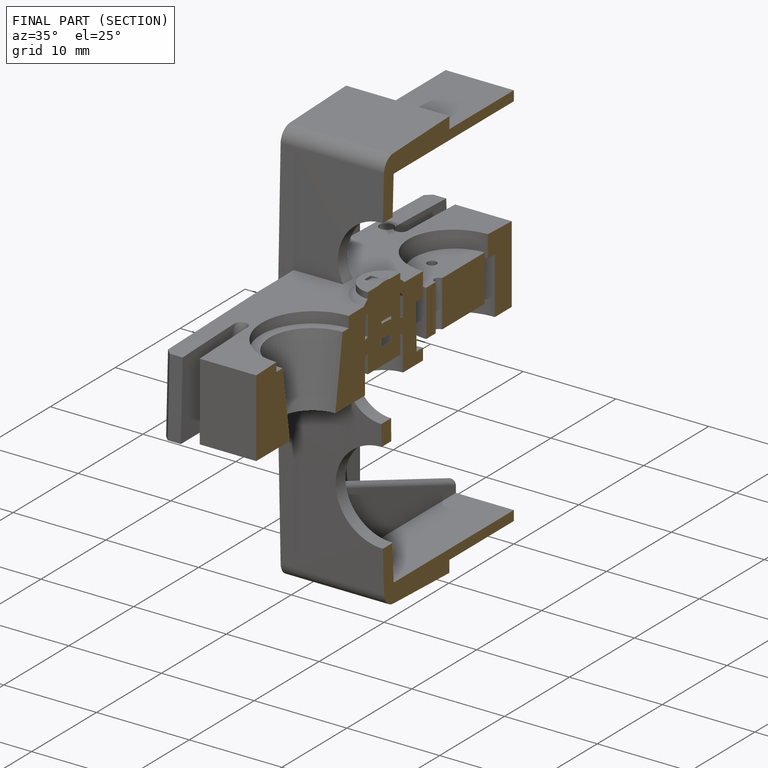
[diagram: finished part — half-section view (interior)]
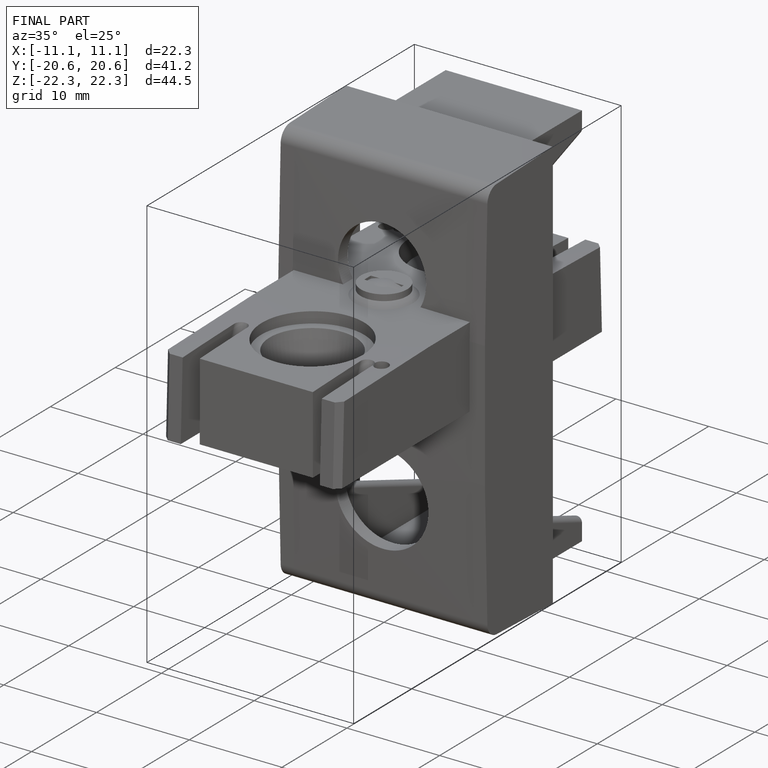
[diagram: finished part — iso view with bounding-box wireframe]
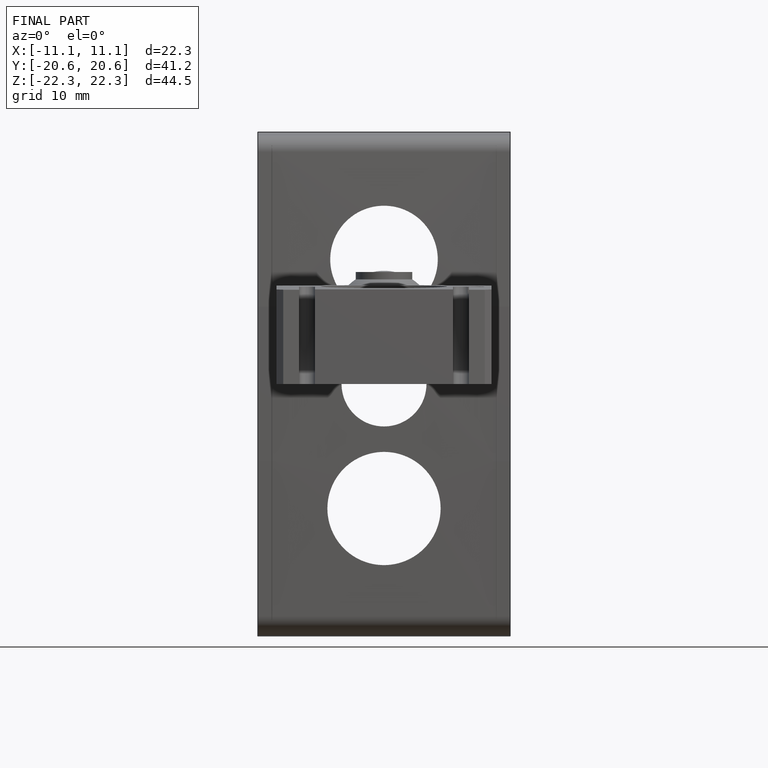
[diagram: finished part — front view with bounding-box wireframe]
